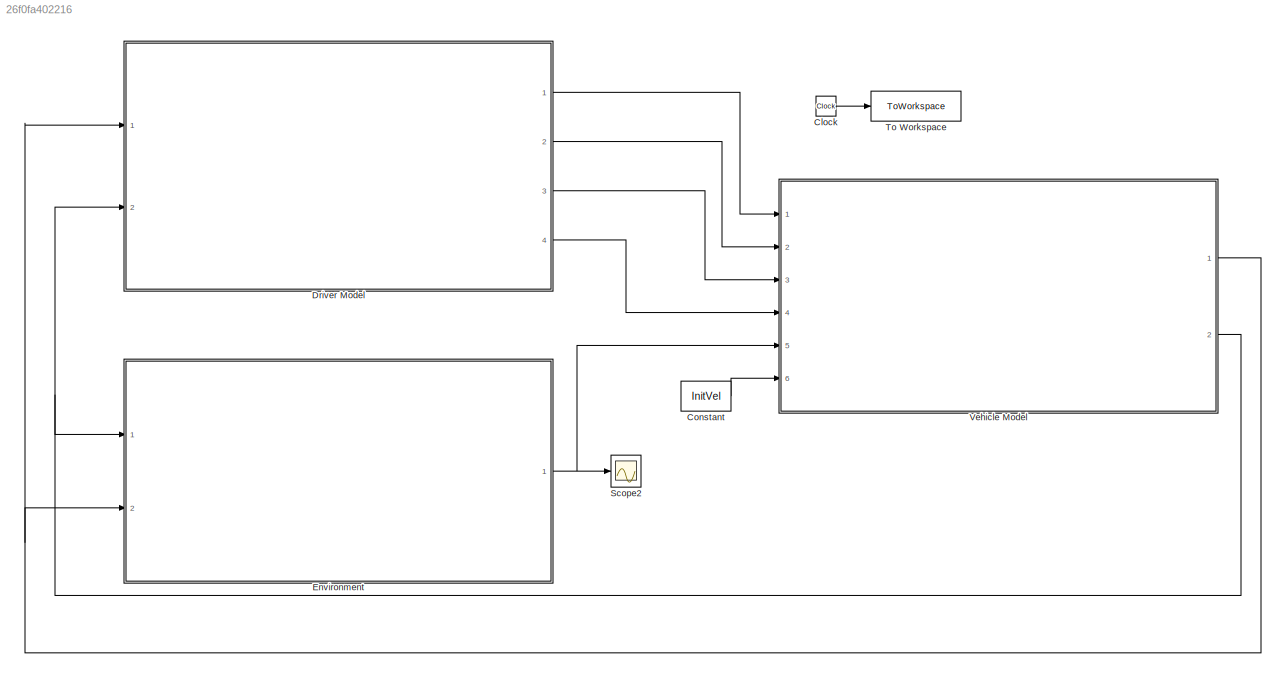
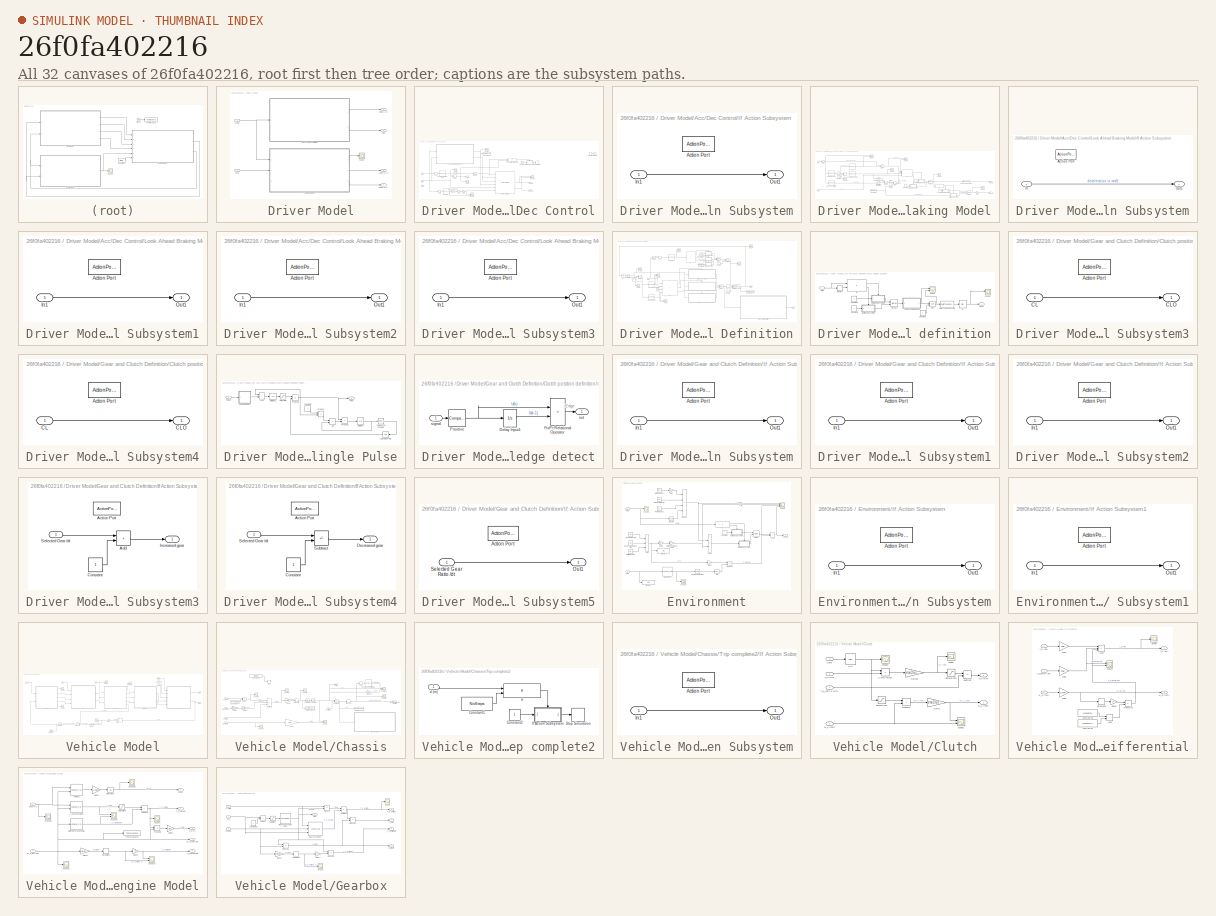
[diagram: thumbnail index - all 32 canvases of the model, root first then tree order]
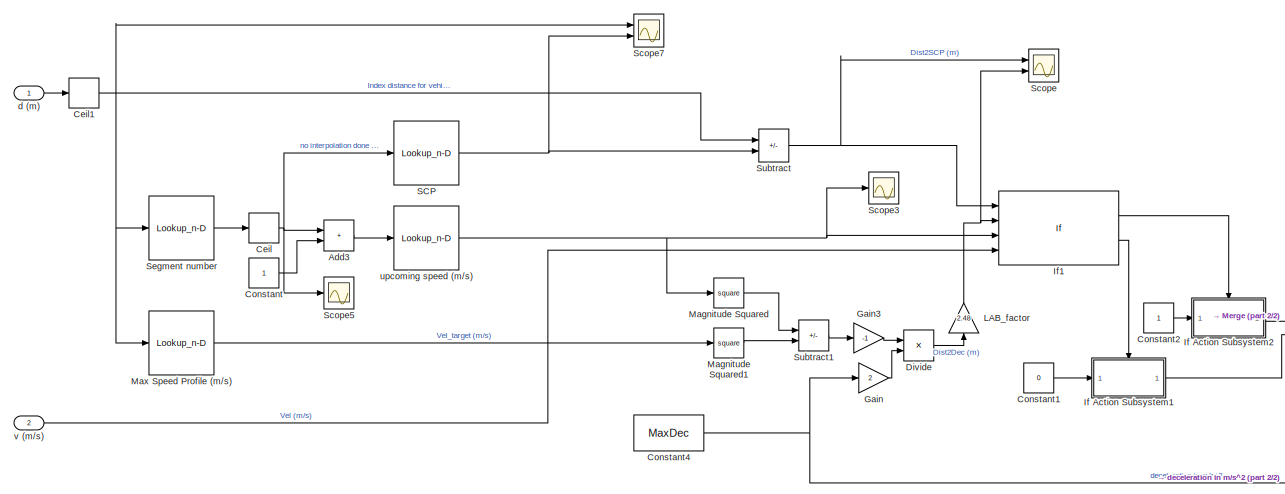
[diagram: Driver Model/Acc/Dec Control/Look Ahead Braking Model - part 1/2, left side, full height]
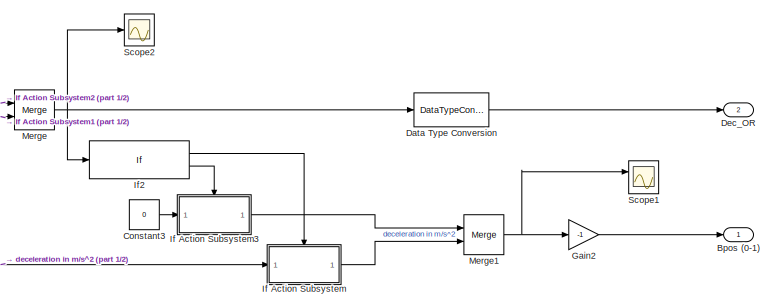
[diagram: Driver Model/Acc/Dec Control/Look Ahead Braking Model - part 2/2, bottom right region]
MODEL slx_26f0fa402216
KIND model
CONFIG AbsTol = auto
CONFIG EnableMultiTasking = off
CONFIG FixedStep = dt
CONFIG MaxStep = auto
CONFIG MinStep = auto
CONFIG RelTol = 1e-3
CONFIG SampleTimeConstraint = Unconstrained
CONFIG SolverName = FixedStepAuto
CONFIG StartTime = 0.0
CONFIG StopTime = 250
BLOCK [Clock] Clock
BLOCK [Constant] Constant
  Value = InitVel
BLOCK [SubSystem] Driver Model
  Ports = [2, 4]
  RequestExecContextInheritance = off
BLOCK [SubSystem] Driver Model/Acc//Dec Control
  Ports = [3, 3]
  RequestExecContextInheritance = off
BLOCK [Outport] Driver Model/Acc//Dec Control/Apos(0-1)
  Port = 2
BLOCK [Outport] Driver Model/Acc//Dec Control/Bpos (0-1)
  Port = 3
BLOCK [Rounding] Driver Model/Acc//Dec Control/Ceil
  Operator = ceil
BLOCK [Rounding] Driver Model/Acc//Dec Control/Ceil1
  Operator = ceil
BLOCK [Constant] Driver Model/Acc//Dec Control/Constant
BLOCK [Reference] Driver Model/Acc//Dec Control/Degrees to Radians  REF=simulink_extras/Transformations/Degrees to
Radians
  Ports = [1, 1]
  SourceBlock = simulink_extras/Transformations/Degrees to\nRadians
  SourceProductBaseCode = SL
  SourceType = DegreesToRadians
BLOCK [Inport] Driver Model/Acc//Dec Control/GNo
  Port = 3
BLOCK [Gain] Driver Model/Acc//Dec Control/Gain1
  Gain = 100
BLOCK [Lookup_n-D] Driver Model/Acc//Dec Control/Generated Operating Cycle
  BreakpointsForDimension1 = [1:length(MaxSpeedProfile)]
  BreakpointsForDimension2 = G1Inprpm
  InputPortMap = u0
  InternalRulePriority = Speed
  InterpMethod = Linear Lagrange
  NumberOfTableDimensions = 1
  Ports = [1, 1]
  RndMeth = Simplest
  Table = MaxSpeedProfile
BLOCK [SubSystem] Driver Model/Acc//Dec Control/If Action Subsystem
  Ports = [1, 1, 0, 0, 0, 0, 0, 1]
  RequestExecContextInheritance = off
  TreatAsAtomicUnit = on
BLOCK [ActionPort] Driver Model/Acc//Dec Control/If Action Subsystem/Action Port
  ActionPortLabel = if(u1 == 0 & u2 == 0)
BLOCK [Inport] Driver Model/Acc//Dec Control/If Action Subsystem/In1
BLOCK [Outport] Driver Model/Acc//Dec Control/If Action Subsystem/Out1
BLOCK [Reference] Driver Model/Acc//Dec Control/Longitudinal Driver  REF=autolibshared/Longitudinal Driver
  Ports = [6, 3]
  SourceBlock = autolibshared/Longitudinal Driver
  SourceProductBaseCode = PW,MT,UV,VE,VP
  SourceType = Longitudinal Driver
BLOCK [SubSystem] Driver Model/Acc//Dec Control/Look Ahead Braking Model
  Ports = [2, 2]
  RequestExecContextInheritance = off
BLOCK [Sum] Driver Model/Acc//Dec Control/Look Ahead Braking Model/Add3
  IconShape = rectangular
  Ports = [2, 1]
BLOCK [Outport] Driver Model/Acc//Dec Control/Look Ahead Braking Model/Bpos (0-1)
BLOCK [Rounding] Driver Model/Acc//Dec Control/Look Ahead Braking Model/Ceil
  Operator = ceil
BLOCK [Rounding] Driver Model/Acc//Dec Control/Look Ahead Braking Model/Ceil1
  Operator = ceil
BLOCK [Constant] Driver Model/Acc//Dec Control/Look Ahead Braking Model/Constant
BLOCK [Constant] Driver Model/Acc//Dec Control/Look Ahead Braking Model/Constant1
  Value = 0
BLOCK [Constant] Driver Model/Acc//Dec Control/Look Ahead Braking Model/Constant2
BLOCK [Constant] Driver Model/Acc//Dec Control/Look Ahead Braking Model/Constant3
  Value = 0
BLOCK [Constant] Driver Model/Acc//Dec Control/Look Ahead Braking Model/Constant4
  Value = MaxDec
BLOCK [DataTypeConversion] Driver Model/Acc//Dec Control/Look Ahead Braking Model/Data Type Conversion
  OutDataTypeStr = boolean
  RndMeth = Floor
  SaturateOnIntegerOverflow = off
BLOCK [Outport] Driver Model/Acc//Dec Control/Look Ahead Braking Model/Dec_OR
  Port = 2
BLOCK [Product] Driver Model/Acc//Dec Control/Look Ahead Braking Model/Divide
  Inputs = */
  Ports = [2, 1]
BLOCK [Gain] Driver Model/Acc//Dec Control/Look Ahead Braking Model/Gain
  Gain = 2
BLOCK [Gain] Driver Model/Acc//Dec Control/Look Ahead Braking Model/Gain2
  Gain = -1
BLOCK [Gain] Driver Model/Acc//Dec Control/Look Ahead Braking Model/Gain3
  Gain = -1
BLOCK [SubSystem] Driver Model/Acc//Dec Control/Look Ahead Braking Model/If Action Subsystem
  Ports = [1, 1, 0, 0, 0, 0, 0, 1]
  RequestExecContextInheritance = off
  TreatAsAtomicUnit = on
BLOCK [ActionPort] Driver Model/Acc//Dec Control/Look Ahead Braking Model/If Action Subsystem/Action Port
  ActionPortLabel = if(u1 > 0)
BLOCK [Inport] Driver Model/Acc//Dec Control/Look Ahead Braking Model/If Action Subsystem/In
BLOCK [Outport] Driver Model/Acc//Dec Control/Look Ahead Braking Model/If Action Subsystem/Out1
BLOCK [SubSystem] Driver Model/Acc//Dec Control/Look Ahead Braking Model/If Action Subsystem1
  Ports = [1, 1, 0, 0, 0, 0, 0, 1]
  RequestExecContextInheritance = off
  TreatAsAtomicUnit = on
BLOCK [ActionPort] Driver Model/Acc//Dec Control/Look Ahead Braking Model/If Action Subsystem1/Action Port
  ActionPortLabel = else
BLOCK [Inport] Driver Model/Acc//Dec Control/Look Ahead Braking Model/If Action Subsystem1/In1
BLOCK [Outport] Driver Model/Acc//Dec Control/Look Ahead Braking Model/If Action Subsystem1/Out1
BLOCK [SubSystem] Driver Model/Acc//Dec Control/Look Ahead Braking Model/If Action Subsystem2
  Ports = [1, 1, 0, 0, 0, 0, 0, 1]
  RequestExecContextInheritance = off
  TreatAsAtomicUnit = on
BLOCK [ActionPort] Driver Model/Acc//Dec Control/Look Ahead Braking Model/If Action Subsystem2/Action Port
  ActionPortLabel = if(u1 <= u2 & u3 < u4)
BLOCK [Inport] Driver Model/Acc//Dec Control/Look Ahead Braking Model/If Action Subsystem2/In1
BLOCK [Outport] Driver Model/Acc//Dec Control/Look Ahead Braking Model/If Action Subsystem2/Out1
BLOCK [SubSystem] Driver Model/Acc//Dec Control/Look Ahead Braking Model/If Action Subsystem3
  Ports = [1, 1, 0, 0, 0, 0, 0, 1]
  RequestExecContextInheritance = off
  TreatAsAtomicUnit = on
BLOCK [ActionPort] Driver Model/Acc//Dec Control/Look Ahead Braking Model/If Action Subsystem3/Action Port
  ActionPortLabel = else
BLOCK [Inport] Driver Model/Acc//Dec Control/Look Ahead Braking Model/If Action Subsystem3/In1
BLOCK [Outport] Driver Model/Acc//Dec Control/Look Ahead Braking Model/If Action Subsystem3/Out1
BLOCK [If] Driver Model/Acc//Dec Control/Look Ahead Braking Model/If1
  IfExpression = u1 <= u2 & u3 < u4
  NumInputs = 4
  Ports = [4, 2]
BLOCK [If] Driver Model/Acc//Dec Control/Look Ahead Braking Model/If2
  Ports = [1, 2]
BLOCK [Gain] Driver Model/Acc//Dec Control/Look Ahead Braking Model/LAB_factor
  Gain = 2.48
  NameLocation = right
BLOCK [Math] Driver Model/Acc//Dec Control/Look Ahead Braking Model/Magnitude Squared
  Operator = square
  Ports = [1, 1]
BLOCK [Math] Driver Model/Acc//Dec Control/Look Ahead Braking Model/Magnitude Squared1
  Operator = square
  Ports = [1, 1]
BLOCK [Lookup_n-D] Driver Model/Acc//Dec Control/Look Ahead Braking Model/Max Speed Profile (m//s)
  BreakpointsForDimension1 = [1:length(MaxSpeedProfile)]
  BreakpointsForDimension2 = G1Inprpm
  InputPortMap = u0
  InternalRulePriority = Speed
  InterpMethod = Linear Lagrange
  NumberOfTableDimensions = 1
  Ports = [1, 1]
  RndMeth = Simplest
  Table = MaxSpeedProfile
BLOCK [Merge] Driver Model/Acc//Dec Control/Look Ahead Braking Model/Merge
  Ports = [2, 1]
BLOCK [Merge] Driver Model/Acc//Dec Control/Look Ahead Braking Model/Merge1
  Ports = [2, 1]
BLOCK [Lookup_n-D] Driver Model/Acc//Dec Control/Look Ahead Braking Model/SCP
  BreakpointsForDimension1 = SegNo
  BreakpointsForDimension2 = G1Inprpm
  InputPortMap = u0
  InternalRulePriority = Speed
  InterpMethod = Linear Lagrange
  NumberOfTableDimensions = 1
  Ports = [1, 1]
  RndMeth = Simplest
  Table = CovDist
BLOCK [Scope] Driver Model/Acc//Dec Control/Look Ahead Braking Model/Scope
  Floating = off
  NumInputPorts = 2
  Ports = [2]
  ScopeSpecificationString = Simulink.scopes.TimeScopeBlockCfg('CurrentConfiguration', extmgr.ConfigurationSet(extmgr.Configuration('Core','General UI',true),extmgr.Configuration('Core','Source UI',true),extmgr.Configuration('Sources','WiredSimulink',true,'DataLoggingVariableName','ScopeData3'),extmgr.Configuration('Visuals','Time Domain',true,'SerializedDisplays',{struct('MinYLimReal','-125.93175','MaxYLimReal','212.17903','...<+1469ch>
BLOCK [Scope] Driver Model/Acc//Dec Control/Look Ahead Braking Model/Scope1
  Floating = off
  NumInputPorts = 2
  Ports = [2]
  ScopeSpecificationString = Simulink.scopes.TimeScopeBlockCfg('CurrentConfiguration', extmgr.ConfigurationSet(extmgr.Configuration('Core','General UI',true),extmgr.Configuration('Core','Source UI',true),extmgr.Configuration('Sources','WiredSimulink',true,'DataLoggingVariableName','ScopeData3'),extmgr.Configuration('Visuals','Time Domain',true,'SerializedDisplays',{struct('MinYLimReal','-0.625','MaxYLimReal','5.625','YLabelRe...<+1465ch>
BLOCK [Scope] Driver Model/Acc//Dec Control/Look Ahead Braking Model/Scope2
  Floating = off
  NumInputPorts = 1
  Ports = [1]
  ScopeSpecificationString = Simulink.scopes.TimeScopeBlockCfg('CurrentConfiguration', extmgr.ConfigurationSet(extmgr.Configuration('Core','General UI',true),extmgr.Configuration('Core','Source UI',true),extmgr.Configuration('Sources','WiredSimulink',true,'DataLoggingVariableName','ScopeData33'),extmgr.Configuration('Visuals','Time Domain',true,'SerializedDisplays',{struct('MinYLimReal','-0.00744','MaxYLimReal','0.01913','YLa...<+1437ch>
BLOCK [Scope] Driver Model/Acc//Dec Control/Look Ahead Braking Model/Scope3
  Floating = off
  NumInputPorts = 1
  Ports = [1]
  ScopeSpecificationString = Simulink.scopes.TimeScopeBlockCfg('CurrentConfiguration', extmgr.ConfigurationSet(extmgr.Configuration('Core','General UI',true),extmgr.Configuration('Core','Source UI',true),extmgr.Configuration('Sources','WiredSimulink',true,'DataLoggingVariableName','ScopeData6'),extmgr.Configuration('Visuals','Time Domain',true,'SerializedDisplays',{struct('MinYLimReal','-1.73611','MaxYLimReal','15.625','YLabe...<+1375ch>
BLOCK [Scope] Driver Model/Acc//Dec Control/Look Ahead Braking Model/Scope5
  Floating = off
  NumInputPorts = 1
  Ports = [1]
  ScopeSpecificationString = Simulink.scopes.TimeScopeBlockCfg('CurrentConfiguration', extmgr.ConfigurationSet(extmgr.Configuration('Core','General UI',true),extmgr.Configuration('Core','Source UI',true),extmgr.Configuration('Sources','WiredSimulink',true,'DataLoggingVariableName','ScopeData8'),extmgr.Configuration('Visuals','Time Domain',true,'SerializedDisplays',{struct('MinYLimReal','0.875','MaxYLimReal','2.125','YLabelRea...<+1387ch>
BLOCK [Scope] Driver Model/Acc//Dec Control/Look Ahead Braking Model/Scope7
  Floating = off
  NumInputPorts = 2
  Ports = [2]
  ScopeSpecificationString = Simulink.scopes.TimeScopeBlockCfg('CurrentConfiguration', extmgr.ConfigurationSet(extmgr.Configuration('Core','General UI',true),extmgr.Configuration('Core','Source UI',true),extmgr.Configuration('Sources','WiredSimulink',true,'DataLoggingVariableName','ScopeData1'),extmgr.Configuration('Visuals','Time Domain',true,'SerializedDisplays',{struct('MinYLimReal','1451.10121','MaxYLimReal','1535.50436',...<+1496ch>
BLOCK [Lookup_n-D] Driver Model/Acc//Dec Control/Look Ahead Braking Model/Segment number
  BreakpointsForDimension1 = CovDist
  BreakpointsForDimension2 = G1Inprpm
  InputPortMap = u0
  InternalRulePriority = Speed
  InterpMethod = Linear Lagrange
  NumberOfTableDimensions = 1
  Ports = [1, 1]
  RndMeth = Simplest
  Table = SegNo
BLOCK [Sum] Driver Model/Acc//Dec Control/Look Ahead Braking Model/Subtract
  IconShape = rectangular
  Inputs = -+
  Ports = [2, 1]
BLOCK [Sum] Driver Model/Acc//Dec Control/Look Ahead Braking Model/Subtract1
  IconShape = rectangular
  Inputs = +-
  Ports = [2, 1]
BLOCK [Inport] Driver Model/Acc//Dec Control/Look Ahead Braking Model/d (m)
BLOCK [Lookup_n-D] Driver Model/Acc//Dec Control/Look Ahead Braking Model/upcoming speed (m//s)
  BreakpointsForDimension1 = SegNo
  BreakpointsForDimension2 = G1Inprpm
  InputPortMap = u0
  InternalRulePriority = Speed
  InterpMethod = Linear Lagrange
  NumberOfTableDimensions = 1
  Ports = [1, 1]
  RndMeth = Simplest
  Table = SegSPLatinmps
BLOCK [Inport] Driver Model/Acc//Dec Control/Look Ahead Braking Model/v (m//s)
  Port = 2
BLOCK [RateLimiter] Driver Model/Acc//Dec Control/Rate Limiter1
  Commented = on
  FallingSlewLimit = -0.5
  RisingSlewLimit = 0.5
  SampleTimeMode = inherited
BLOCK [Saturate] Driver Model/Acc//Dec Control/Saturation
  LowerLimit = 0
  UpperLimit = inf
BLOCK [Saturate] Driver Model/Acc//Dec Control/Saturation2
  Commented = on
  LowerLimit = -1
  UpperLimit = 1
BLOCK [Scope] Driver Model/Acc//Dec Control/Scope
  Floating = off
  NumInputPorts = 2
  Ports = [2]
  ScopeSpecificationString = Simulink.scopes.TimeScopeBlockCfg('CurrentConfiguration', extmgr.ConfigurationSet(extmgr.Configuration('Core','General UI',true),extmgr.Configuration('Core','Source UI',true),extmgr.Configuration('Sources','WiredSimulink',true,'DataLoggingVariableName','ScopeData18'),extmgr.Configuration('Visuals','Time Domain',true,'SerializedDisplays',{struct('MinYLimReal','-3.99825','MaxYLimReal','15.87635','YL...<+1451ch>
BLOCK [Scope] Driver Model/Acc//Dec Control/Scope1
  Floating = off
  NumInputPorts = 1
  Ports = [1]
  ScopeSpecificationString = Simulink.scopes.TimeScopeBlockCfg('CurrentConfiguration', extmgr.ConfigurationSet(extmgr.Configuration('Core','General UI',true),extmgr.Configuration('Core','Source UI',true),extmgr.Configuration('Sources','WiredSimulink',true,'DataLoggingVariableName','ScopeData7'),extmgr.Configuration('Visuals','Time Domain',true,'SerializedDisplays',{struct('MinYLimReal','-5.625','MaxYLimReal','0.625','YLabelRe...<+1482ch>
BLOCK [Scope] Driver Model/Acc//Dec Control/Scope4
  Floating = off
  NumInputPorts = 2
  Ports = [2]
  ScopeSpecificationString = Simulink.scopes.TimeScopeBlockCfg('CurrentConfiguration', extmgr.ConfigurationSet(extmgr.Configuration('Core','General UI',true),extmgr.Configuration('Core','Source UI',true),extmgr.Configuration('Sources','WiredSimulink',true,'DataLoggingVariableName','ScopeData7'),extmgr.Configuration('Visuals','Time Domain',true,'SerializedDisplays',{struct('MinYLimReal','-1.73611','MaxYLimReal','15.625','YLabe...<+1439ch>
BLOCK [Scope] Driver Model/Acc//Dec Control/Scope5
  Floating = off
  NumInputPorts = 3
  Ports = [3]
  ScopeSpecificationString = Simulink.scopes.TimeScopeBlockCfg('CurrentConfiguration', extmgr.ConfigurationSet(extmgr.Configuration('Core','General UI',true),extmgr.Configuration('Core','Source UI',true),extmgr.Configuration('Sources','WiredSimulink',true,'DataLoggingVariableName','ScopeData1'),extmgr.Configuration('Visuals','Time Domain',true,'SerializedDisplays',{struct('MinYLimReal','-0.125','MaxYLimReal','1.125','YLabelRe...<+1549ch>
BLOCK [Scope] Driver Model/Acc//Dec Control/Scope6
  Floating = off
  NumInputPorts = 3
  Ports = [3]
  ScopeSpecificationString = Simulink.scopes.TimeScopeBlockCfg('CurrentConfiguration', extmgr.ConfigurationSet(extmgr.Configuration('Core','General UI',true),extmgr.Configuration('Core','Source UI',true),extmgr.Configuration('Sources','WiredSimulink',true,'DataLoggingVariableName','ScopeData4'),extmgr.Configuration('Visuals','Time Domain',true,'SerializedDisplays',{struct('MinYLimReal','-1.00000','MaxYLimReal','1.00000','YLab...<+1456ch>
BLOCK [Lookup_n-D] Driver Model/Acc//Dec Control/Slope (deg)
  BreakpointsForDimension1 = 1: length(IntpSlope)
  InputPortMap = u0
  InternalRulePriority = Speed
  NumberOfTableDimensions = 1
  Ports = [1, 1]
  RndMeth = Simplest
  Table = IntpSlope
BLOCK [Stop] Driver Model/Acc//Dec Control/Stop Simulation
BLOCK [If] Driver Model/Acc//Dec Control/Stop simulation if target vel is 0
  IfExpression = u1 == 0 & u2 == 0
  NumInputs = 2
  Ports = [2, 1]
  ShowElse = off
BLOCK [Sum] Driver Model/Acc//Dec Control/Subtract
  IconShape = rectangular
  Inputs = +-
  Ports = [2, 1]
BLOCK [Trigonometry] Driver Model/Acc//Dec Control/Tan
  Operator = tan
  Ports = [1, 1]
BLOCK [ToWorkspace] Driver Model/Acc//Dec Control/To Workspace1
  FixptAsFi = on
  MaxDataPoints = inf
  Ports = [1]
  SampleTime = -1
  SaveFormat = Timeseries
  VariableName = LAB
BLOCK [Inport] Driver Model/Acc//Dec Control/d (m)
  Port = 2
BLOCK [Inport] Driver Model/Acc//Dec Control/v (m//s)
BLOCK [Outport] Driver Model/Acc//Dec Control/v_er (m//s)
BLOCK [Outport] Driver Model/Apos(0-1)
  Port = 3
BLOCK [Outport] Driver Model/Bpos (0-1)
  Port = 4
BLOCK [Outport] Driver Model/Cpos (1-0)
BLOCK [Outport] Driver Model/GNo
  Port = 2
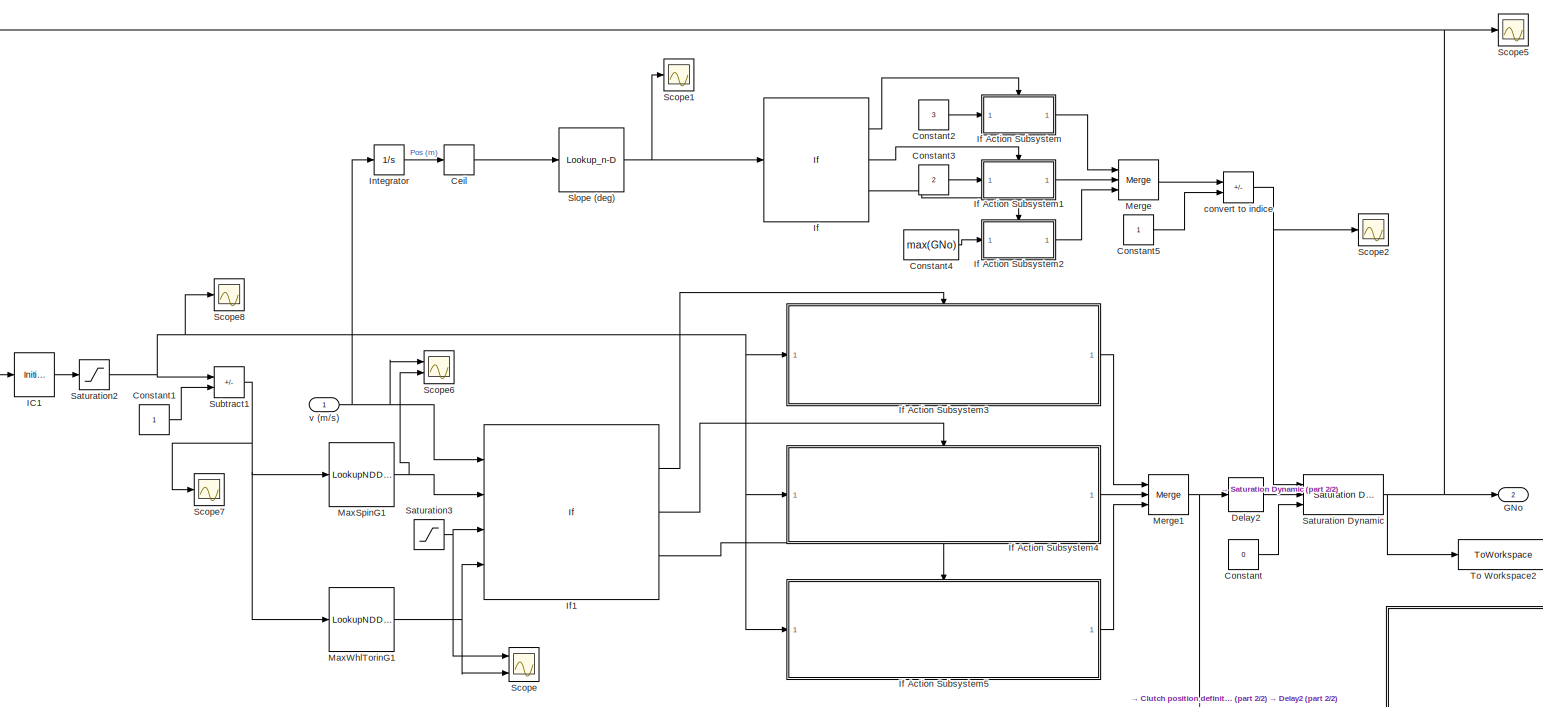
[diagram: Driver Model/Gear and Clutch Definition - part 1/2, most of the canvas]
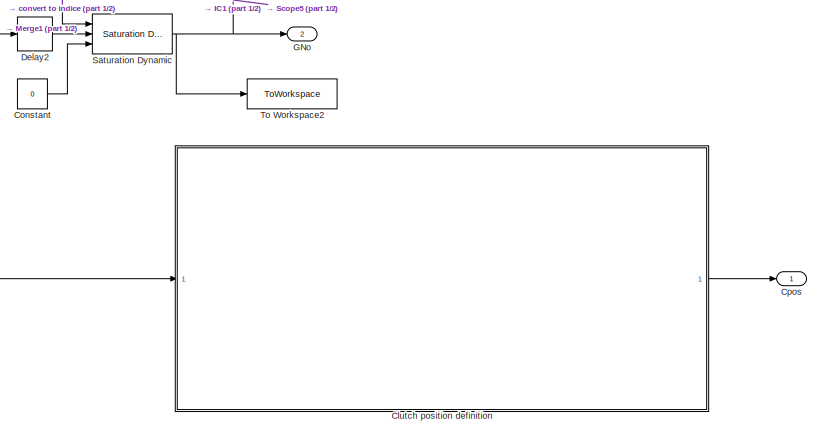
[diagram: Driver Model/Gear and Clutch Definition - part 2/2, bottom right region]
BLOCK [SubSystem] Driver Model/Gear and Clutch Definition
  Ports = [1, 2]
  RequestExecContextInheritance = off
BLOCK [Rounding] Driver Model/Gear and Clutch Definition/Ceil
  Operator = ceil
BLOCK [SubSystem] Driver Model/Gear and Clutch Definition/Clutch position definition
  Ports = [1, 1]
  RequestExecContextInheritance = off
BLOCK [Constant] Driver Model/Gear and Clutch Definition/Clutch position definition/Constant
BLOCK [Constant] Driver Model/Gear and Clutch Definition/Clutch position definition/Constant2
  Value = 0
BLOCK [Constant] Driver Model/Gear and Clutch Definition/Clutch position definition/Constant3
BLOCK [Outport] Driver Model/Gear and Clutch Definition/Clutch position definition/Cpos
BLOCK [DataTypeConversion] Driver Model/Gear and Clutch Definition/Clutch position definition/Data Type Conversion
  OutDataTypeStr = double
  RndMeth = Floor
  SaturateOnIntegerOverflow = off
BLOCK [Inport] Driver Model/Gear and Clutch Definition/Clutch position definition/GNo
BLOCK [InitialCondition] Driver Model/Gear and Clutch Definition/Clutch position definition/IC
  Value = 0
BLOCK [SubSystem] Driver Model/Gear and Clutch Definition/Clutch position definition/If Action Subsystem3
  Ports = [1, 1, 0, 0, 0, 0, 0, 1]
  RequestExecContextInheritance = off
  TreatAsAtomicUnit = on
BLOCK [ActionPort] Driver Model/Gear and Clutch Definition/Clutch position definition/If Action Subsystem3/Action Port
  ActionPortLabel = if(u1 == u2)
BLOCK [Inport] Driver Model/Gear and Clutch Definition/Clutch position definition/If Action Subsystem3/CL
BLOCK [Outport] Driver Model/Gear and Clutch Definition/Clutch position definition/If Action Subsystem3/CLO
BLOCK [SubSystem] Driver Model/Gear and Clutch Definition/Clutch position definition/If Action Subsystem4
  Ports = [1, 1, 0, 0, 0, 0, 0, 1]
  RequestExecContextInheritance = off
  TreatAsAtomicUnit = on
BLOCK [ActionPort] Driver Model/Gear and Clutch Definition/Clutch position definition/If Action Subsystem4/Action Port
  ActionPortLabel = else
BLOCK [Inport] Driver Model/Gear and Clutch Definition/Clutch position definition/If Action Subsystem4/CL
BLOCK [Outport] Driver Model/Gear and Clutch Definition/Clutch position definition/If Action Subsystem4/CLO
BLOCK [If] Driver Model/Gear and Clutch Definition/Clutch position definition/If1
  IfExpression = u1 == u2
  NumInputs = 2
  Ports = [2, 2]
BLOCK [Memory] Driver Model/Gear and Clutch Definition/Clutch position definition/Memory
BLOCK [Merge] Driver Model/Gear and Clutch Definition/Clutch position definition/Merge2
  Ports = [2, 1]
BLOCK [Scope] Driver Model/Gear and Clutch Definition/Clutch position definition/Scope
  Floating = off
  NumInputPorts = 2
  Ports = [2]
  ScopeSpecificationString = Simulink.scopes.TimeScopeBlockCfg('CurrentConfiguration', extmgr.ConfigurationSet(extmgr.Configuration('Core','General UI',true),extmgr.Configuration('Core','Source UI',true),extmgr.Configuration('Sources','WiredSimulink',true,'DataLoggingVariableName','ScopeData4'),extmgr.Configuration('Visuals','Time Domain',true,'SerializedDisplays',{struct('MinYLimReal','-0.125','MaxYLimReal','1.125','YLabelRe...<+1419ch>
BLOCK [Scope] Driver Model/Gear and Clutch Definition/Clutch position definition/Scope1
  Floating = off
  NumInputPorts = 2
  Ports = [2]
  ScopeSpecificationString = Simulink.scopes.TimeScopeBlockCfg('CurrentConfiguration', extmgr.ConfigurationSet(extmgr.Configuration('Core','General UI',true),extmgr.Configuration('Core','Source UI',true),extmgr.Configuration('Sources','WiredSimulink',true,'DataLoggingVariableName','ScopeData2'),extmgr.Configuration('Visuals','Time Domain',true,'SerializedDisplays',{struct('MinYLimReal','-0.125','MaxYLimReal','1.125','YLabelRe...<+1482ch>
BLOCK [SubSystem] Driver Model/Gear and Clutch Definition/Clutch position definition/Triggered Single Pulse
  Ports = [1, 1]
  RequestExecContextInheritance = off
  TreatAsAtomicUnit = on
BLOCK [SubSystem] Driver Model/Gear and Clutch Definition/Clutch position definition/Triggered Single Pulse/+ve edge detect
  Ports = [1, 1]
  RequestExecContextInheritance = off
BLOCK [UnitDelay] Driver Model/Gear and Clutch Definition/Clutch position definition/Triggered Single Pulse/+ve edge detect/Delay Input1
  Description = Store in Global RAM
  DisableCoverage = on
  HasFrameUpgradeWarning = on
  SampleTime = -1
BLOCK [RelationalOperator] Driver Model/Gear and Clutch Definition/Clutch position definition/Triggered Single Pulse/+ve edge detect/FixPt Relational Operator
  InputSameDT = off
  Operator = >
  OutDataTypeStr = fixdt(0, 8)
  Ports = [2, 1]
  ZeroCross = off
BLOCK [Reference] Driver Model/Gear and Clutch Definition/Clutch position definition/Triggered Single Pulse/+ve edge detect/Positive  REF=simulink/Logic and Bit
Operations/Compare
To Zero
  Ports = [1, 1]
  SourceBlock = simulink/Logic and Bit\nOperations/Compare\nTo Zero
  SourceProductBaseCode = SL
  SourceType = Compare To Zero
BLOCK [Outport] Driver Model/Gear and Clutch Definition/Clutch position definition/Triggered Single Pulse/+ve edge detect/out
BLOCK [Inport] Driver Model/Gear and Clutch Definition/Clutch position definition/Triggered Single Pulse/+ve edge detect/signal
BLOCK [Sum] Driver Model/Gear and Clutch Definition/Clutch position definition/Triggered Single Pulse/Add
  IconShape = rectangular
  Ports = [2, 1]
BLOCK [Sum] Driver Model/Gear and Clutch Definition/Clutch position definition/Triggered Single Pulse/Add1
  IconShape = rectangular
  Ports = [2, 1]
BLOCK [Reference] Driver Model/Gear and Clutch Definition/Clutch position definition/Triggered Single Pulse/Compare To Constant  REF=simulink/Logic and Bit
Operations/Compare
To Constant
  Ports = [1, 1]
  SourceBlock = simulink/Logic and Bit\nOperations/Compare\nTo Constant
  SourceProductBaseCode = SL
  SourceType = Compare To Constant
BLOCK [Constant] Driver Model/Gear and Clutch Definition/Clutch position definition/Triggered Single Pulse/Constant2
BLOCK [Logic] Driver Model/Gear and Clutch Definition/Clutch position definition/Triggered Single Pulse/Logical Operator
  AllPortsSameDT = off
  Operator = NOT
  OutDataTypeStr = boolean
  Ports = [1, 1]
BLOCK [Product] Driver Model/Gear and Clutch Definition/Clutch position definition/Triggered Single Pulse/Product
  Ports = [2, 1]
  RndMeth = Zero
BLOCK [Product] Driver Model/Gear and Clutch Definition/Clutch position definition/Triggered Single Pulse/Product1
  Ports = [2, 1]
  RndMeth = Zero
BLOCK [Product] Driver Model/Gear and Clutch Definition/Clutch position definition/Triggered Single Pulse/Product3
  Ports = [2, 1]
  RndMeth = Zero
BLOCK [Outport] Driver Model/Gear and Clutch Definition/Clutch position definition/Triggered Single Pulse/Pulse
BLOCK [Saturate] Driver Model/Gear and Clutch Definition/Clutch position definition/Triggered Single Pulse/Saturation
  LowerLimit = 0
  UpperLimit = 1
BLOCK [Inport] Driver Model/Gear and Clutch Definition/Clutch position definition/Triggered Single Pulse/Trigger
BLOCK [UnitDelay] Driver Model/Gear and Clutch Definition/Clutch position definition/Triggered Single Pulse/Unit Delay
  HasFrameUpgradeWarning = on
  SampleTime = -1
BLOCK [UnitDelay] Driver Model/Gear and Clutch Definition/Clutch position definition/Triggered Single Pulse/Unit Delay1
  HasFrameUpgradeWarning = on
  SampleTime = -1
BLOCK [Logic] Driver Model/Gear and Clutch Definition/Clutch position definition/XOR
  AllPortsSameDT = off
  IconShape = distinctive
  Operator = XOR
  OutDataTypeStr = boolean
  Ports = [2, 1]
BLOCK [Constant] Driver Model/Gear and Clutch Definition/Constant
  Value = 0
BLOCK [Constant] Driver Model/Gear and Clutch Definition/Constant1
BLOCK [Constant] Driver Model/Gear and Clutch Definition/Constant2
  Value = 3
BLOCK [Constant] Driver Model/Gear and Clutch Definition/Constant3
  Value = 2
BLOCK [Constant] Driver Model/Gear and Clutch Definition/Constant4
  Value = max(GNo)
BLOCK [Constant] Driver Model/Gear and Clutch Definition/Constant5
BLOCK [Outport] Driver Model/Gear and Clutch Definition/Cpos
BLOCK [Delay] Driver Model/Gear and Clutch Definition/Delay2
  DelayLength = 1
  InputPortMap = u0
  Ports = [1, 1]
BLOCK [Outport] Driver Model/Gear and Clutch Definition/GNo
  Port = 2
BLOCK [InitialCondition] Driver Model/Gear and Clutch Definition/IC1
BLOCK [If] Driver Model/Gear and Clutch Definition/If
  ElseIfExpressions = u1 > 5.5
  IfExpression = u1 > 2.8
  Ports = [1, 3]
BLOCK [SubSystem] Driver Model/Gear and Clutch Definition/If Action Subsystem
  Ports = [1, 1, 0, 0, 0, 0, 0, 1]
  RequestExecContextInheritance = off
  TreatAsAtomicUnit = on
BLOCK [ActionPort] Driver Model/Gear and Clutch Definition/If Action Subsystem/Action Port
  ActionPortLabel = if(u1 > 2.8)
BLOCK [Inport] Driver Model/Gear and Clutch Definition/If Action Subsystem/In1
BLOCK [Outport] Driver Model/Gear and Clutch Definition/If Action Subsystem/Out1
BLOCK [SubSystem] Driver Model/Gear and Clutch Definition/If Action Subsystem1
  Ports = [1, 1, 0, 0, 0, 0, 0, 1]
  RequestExecContextInheritance = off
  TreatAsAtomicUnit = on
BLOCK [ActionPort] Driver Model/Gear and Clutch Definition/If Action Subsystem1/Action Port
  ActionPortLabel = elseif(u1 > 5.5)
BLOCK [Inport] Driver Model/Gear and Clutch Definition/If Action Subsystem1/In1
BLOCK [Outport] Driver Model/Gear and Clutch Definition/If Action Subsystem1/Out1
BLOCK [SubSystem] Driver Model/Gear and Clutch Definition/If Action Subsystem2
  Ports = [1, 1, 0, 0, 0, 0, 0, 1]
  RequestExecContextInheritance = off
  TreatAsAtomicUnit = on
BLOCK [ActionPort] Driver Model/Gear and Clutch Definition/If Action Subsystem2/Action Port
  ActionPortLabel = else
BLOCK [Inport] Driver Model/Gear and Clutch Definition/If Action Subsystem2/In1
BLOCK [Outport] Driver Model/Gear and Clutch Definition/If Action Subsystem2/Out1
BLOCK [SubSystem] Driver Model/Gear and Clutch Definition/If Action Subsystem3
  Ports = [1, 1, 0, 0, 0, 0, 0, 1]
  RequestExecContextInheritance = off
  TreatAsAtomicUnit = on
BLOCK [ActionPort] Driver Model/Gear and Clutch Definition/If Action Subsystem3/Action Port
  ActionPortLabel = if(u1 >= u2 & u3 < u4)
BLOCK [Sum] Driver Model/Gear and Clutch Definition/If Action Subsystem3/Add
  IconShape = rectangular
  Ports = [2, 1]
BLOCK [Constant] Driver Model/Gear and Clutch Definition/If Action Subsystem3/Constant
BLOCK [Outport] Driver Model/Gear and Clutch Definition/If Action Subsystem3/Increased gear
BLOCK [Inport] Driver Model/Gear and Clutch Definition/If Action Subsystem3/Selected Gear //dt
BLOCK [SubSystem] Driver Model/Gear and Clutch Definition/If Action Subsystem4
  Ports = [1, 1, 0, 0, 0, 0, 0, 1]
  RequestExecContextInheritance = off
  TreatAsAtomicUnit = on
BLOCK [ActionPort] Driver Model/Gear and Clutch Definition/If Action Subsystem4/Action Port
  ActionPortLabel = elseif(u3 >= u4 & u1 < u2)
BLOCK [Constant] Driver Model/Gear and Clutch Definition/If Action Subsystem4/Constant
BLOCK [Outport] Driver Model/Gear and Clutch Definition/If Action Subsystem4/Decreased gear
BLOCK [Inport] Driver Model/Gear and Clutch Definition/If Action Subsystem4/Selected Gear //dt
BLOCK [Sum] Driver Model/Gear and Clutch Definition/If Action Subsystem4/Subtract
  IconShape = rectangular
  Inputs = +-
  Ports = [2, 1]
BLOCK [SubSystem] Driver Model/Gear and Clutch Definition/If Action Subsystem5
  Ports = [1, 1, 0, 0, 0, 0, 0, 1]
  RequestExecContextInheritance = off
  TreatAsAtomicUnit = on
BLOCK [ActionPort] Driver Model/Gear and Clutch Definition/If Action Subsystem5/Action Port
  ActionPortLabel = else
BLOCK [Outport] Driver Model/Gear and Clutch Definition/If Action Subsystem5/Out1
BLOCK [Inport] Driver Model/Gear and Clutch Definition/If Action Subsystem5/Selected Gear Ratio //dt
BLOCK [If] Driver Model/Gear and Clutch Definition/If1
  ElseIfExpressions = u3 >= u4 & u1 < u2
  IfExpression = u1 >= u2 & u3 < u4
  NumInputs = 4
  Ports = [4, 3]
BLOCK [Integrator] Driver Model/Gear and Clutch Definition/Integrator
  Ports = [1, 1]
BLOCK [LookupNDDirect] Driver Model/Gear and Clutch Definition/MaxSpinG1
  NumberOfTableDimensions = 1
  Ports = [1, 1]
  Table = MaxSpinG
BLOCK [LookupNDDirect] Driver Model/Gear and Clutch Definition/MaxWhlTorinG1
  NumberOfTableDimensions = 1
  Ports = [1, 1]
  Table = MaxWhlTorinG
BLOCK [Merge] Driver Model/Gear and Clutch Definition/Merge
  Inputs = 3
  Ports = [3, 1]
BLOCK [Merge] Driver Model/Gear and Clutch Definition/Merge1
  Inputs = 3
  Ports = [3, 1]
BLOCK [Reference] Driver Model/Gear and Clutch Definition/Saturation Dynamic  REF=simulink/Discontinuities/Saturation
Dynamic
  Ports = [3, 1]
  SourceBlock = simulink/Discontinuities/Saturation\nDynamic
  SourceProductBaseCode = SL
  SourceType = Saturation Dynamic
BLOCK [Saturate] Driver Model/Gear and Clutch Definition/Saturation2
  LowerLimit = 0
  UpperLimit = max(GNo)
BLOCK [Saturate] Driver Model/Gear and Clutch Definition/Saturation3
  LowerLimit = 0
  UpperLimit = inf
BLOCK [Scope] Driver Model/Gear and Clutch Definition/Scope
  Floating = off
  NumInputPorts = 3
  Ports = [3]
  ScopeSpecificationString = Simulink.scopes.TimeScopeBlockCfg('CurrentConfiguration', extmgr.ConfigurationSet(extmgr.Configuration('Core','General UI',true),extmgr.Configuration('Core','Source UI',true),extmgr.Configuration('Sources','WiredSimulink',true,'DataLoggingVariableName','ScopeData13'),extmgr.Configuration('Visuals','Time Domain',true,'SerializedDisplays',{struct('MinYLimReal','-1850.48865','MaxYLimReal','28388.4898...<+1526ch>
BLOCK [Scope] Driver Model/Gear and Clutch Definition/Scope1
  Floating = off
  NumInputPorts = 1
  Ports = [1]
  ScopeSpecificationString = Simulink.scopes.TimeScopeBlockCfg('CurrentConfiguration', extmgr.ConfigurationSet(extmgr.Configuration('Core','General UI',true),extmgr.Configuration('Core','Source UI',true),extmgr.Configuration('Sources','WiredSimulink',true,'DataLoggingVariableName','ScopeData12'),extmgr.Configuration('Visuals','Time Domain',true,'SerializedDisplays',{struct('MinYLimReal','5.70273','MaxYLimReal','5.72102','YLab...<+1388ch>
BLOCK [Scope] Driver Model/Gear and Clutch Definition/Scope2
  Floating = off
  NumInputPorts = 1
  Ports = [1]
  ScopeSpecificationString = Simulink.scopes.TimeScopeBlockCfg('CurrentConfiguration', extmgr.ConfigurationSet(extmgr.Configuration('Core','General UI',true),extmgr.Configuration('Core','Source UI',true),extmgr.Configuration('Sources','WiredSimulink',true,'DataLoggingVariableName','ScopeData18'),extmgr.Configuration('Visuals','Time Domain',true,'SerializedDisplays',{struct('MinYLimReal','3.00000','MaxYLimReal','5.00000','YLab...<+1375ch>
BLOCK [Scope] Driver Model/Gear and Clutch Definition/Scope5
  Floating = off
  NumInputPorts = 1
  Ports = [1]
  ScopeSpecificationString = Simulink.scopes.TimeScopeBlockCfg('CurrentConfiguration', extmgr.ConfigurationSet(extmgr.Configuration('Core','General UI',true),extmgr.Configuration('Core','Source UI',true),extmgr.Configuration('Sources','WiredSimulink',true,'DataLoggingVariableName','ScopeData2'),extmgr.Configuration('Visuals','Time Domain',true,'SerializedDisplays',{struct('MinYLimReal','-0.5','MaxYLimReal','4.5','YLabelReal',...<+1405ch>
BLOCK [Scope] Driver Model/Gear and Clutch Definition/Scope6
  Floating = off
  NumInputPorts = 2
  Ports = [2]
  ScopeSpecificationString = Simulink.scopes.TimeScopeBlockCfg('CurrentConfiguration', extmgr.ConfigurationSet(extmgr.Configuration('Core','General UI',true),extmgr.Configuration('Core','Source UI',true),extmgr.Configuration('Sources','WiredSimulink',true,'DataLoggingVariableName','ScopeData3'),extmgr.Configuration('Visuals','Time Domain',true,'SerializedDisplays',{struct('MinYLimReal','-1.90944','MaxYLimReal','17.18495','YLa...<+1384ch>
BLOCK [Scope] Driver Model/Gear and Clutch Definition/Scope7
  Floating = off
  NumInputPorts = 1
  Ports = [1]
  ScopeSpecificationString = Simulink.scopes.TimeScopeBlockCfg('CurrentConfiguration', extmgr.ConfigurationSet(extmgr.Configuration('Core','General UI',true),extmgr.Configuration('Core','Source UI',true),extmgr.Configuration('Sources','WiredSimulink',true,'DataLoggingVariableName','ScopeData7'),extmgr.Configuration('Visuals','Time Domain',true,'SerializedDisplays',{struct('MinYLimReal','-0.375','MaxYLimReal','3.375','YLabelRe...<+1386ch>
BLOCK [Scope] Driver Model/Gear and Clutch Definition/Scope8
  Floating = off
  NumInputPorts = 1
  Ports = [1]
  ScopeSpecificationString = Simulink.scopes.TimeScopeBlockCfg('CurrentConfiguration', extmgr.ConfigurationSet(extmgr.Configuration('Core','General UI',true),extmgr.Configuration('Core','Source UI',true),extmgr.Configuration('Sources','WiredSimulink',true,'DataLoggingVariableName','ScopeData9'),extmgr.Configuration('Visuals','Time Domain',true,'SerializedDisplays',{struct('MinYLimReal','0.625','MaxYLimReal','4.375','YLabelRea...<+1382ch>
BLOCK [Lookup_n-D] Driver Model/Gear and Clutch Definition/Slope (deg)
  BreakpointsForDimension1 = 1: length(IntpSlope)
  InputPortMap = u0
  InternalRulePriority = Speed
  NumberOfTableDimensions = 1
  Ports = [1, 1]
  RndMeth = Simplest
  Table = IntpSlope
BLOCK [Sum] Driver Model/Gear and Clutch Definition/Subtract1
  IconShape = rectangular
  Inputs = +-
  Ports = [2, 1]
BLOCK [ToWorkspace] Driver Model/Gear and Clutch Definition/To Workspace2
  FixptAsFi = on
  MaxDataPoints = inf
  Ports = [1]
  SampleTime = -1
  SaveFormat = Timeseries
  VariableName = Sel_g
BLOCK [Sum] Driver Model/Gear and Clutch Definition/convert to indice
  IconShape = rectangular
  Inputs = +-
  Ports = [2, 1]
BLOCK [Inport] Driver Model/Gear and Clutch Definition/v (m//s)
BLOCK [Scope] Driver Model/Scope
  Floating = off
  NumInputPorts = 1
  Ports = [1]
  ScopeSpecificationString = Simulink.scopes.TimeScopeBlockCfg('CurrentConfiguration', extmgr.ConfigurationSet(extmgr.Configuration('Core','General UI',true),extmgr.Configuration('Core','Source UI',true),extmgr.Configuration('Sources','WiredSimulink',true,'DataLoggingVariableName','ScopeData2'),extmgr.Configuration('Visuals','Time Domain',true,'SerializedDisplays',{struct('MinYLimReal','-6.53239','MaxYLimReal','16.15792','YLa...<+1435ch>
BLOCK [Inport] Driver Model/d (m)
  NameLocation = top
  Port = 2
BLOCK [Inport] Driver Model/v (m//s)
BLOCK [SubSystem] Environment
  Ports = [2, 1]
  RequestExecContextInheritance = off
BLOCK [Sum] Environment/Add
  IconShape = rectangular
  Inputs = +++
  Ports = [3, 1]
BLOCK [Sum] Environment/Add1
  IconShape = rectangular
  Ports = [2, 1]
BLOCK [Sum] Environment/Add2
  IconShape = rectangular
  Ports = [2, 1]
BLOCK [Constant] Environment/Air Density Rho
  Value = rho
BLOCK [Constant] Environment/Constant
  Value = 0
BLOCK [Reference] Environment/Degrees to Radians  REF=simulink_extras/Transformations/Degrees to
Radians
  Ports = [1, 1]
  SourceBlock = simulink_extras/Transformations/Degrees to\nRadians
  SourceProductBaseCode = SL
  SourceType = DegreesToRadians
BLOCK [Display] Environment/Display
  Decimation = 1
  Ports = [1]
BLOCK [Display] Environment/Display1
  Decimation = 1
  Ports = [1]
BLOCK [Constant] Environment/Drag Coefficient Cx
  Value = Cx
BLOCK [Constant] Environment/Expendable Mass Me
  Value = Me
BLOCK [Outport] Environment/F_res (N)
BLOCK [Constant] Environment/Frontal Area Sx
  Value = Sx
BLOCK [Gain] Environment/Gain
  Gain = 1/2
BLOCK [Gain] Environment/Gain1
  Gain = g
BLOCK [Gain] Environment/Gain2
  Gain = g
BLOCK [If] Environment/If
  Ports = [1, 2]
BLOCK [SubSystem] Environment/If Action Subsystem
  Ports = [1, 1, 0, 0, 0, 0, 0, 1]
  RequestExecContextInheritance = off
  TreatAsAtomicUnit = on
BLOCK [ActionPort] Environment/If Action Subsystem/Action Port
  ActionPortLabel = if(u1 > 0)
BLOCK [Inport] Environment/If Action Subsystem/In1
BLOCK [Outport] Environment/If Action Subsystem/Out1
BLOCK [SubSystem] Environment/If Action Subsystem1
  Ports = [1, 1, 0, 0, 0, 0, 0, 1]
  RequestExecContextInheritance = off
  TreatAsAtomicUnit = on
BLOCK [ActionPort] Environment/If Action Subsystem1/Action Port
  ActionPortLabel = else
BLOCK [Inport] Environment/If Action Subsystem1/In1
BLOCK [Outport] Environment/If Action Subsystem1/Out1
BLOCK [Merge] Environment/Merge
  Ports = [2, 1]
BLOCK [Product] Environment/Product
  Inputs = 4
  Ports = [4, 1]
BLOCK [Product] Environment/Product1
  Ports = [2, 1]
BLOCK [Gain] Environment/Rolling Resitance coeff
  Gain = Fr
BLOCK [Scope] Environment/Scope
  Floating = off
  NumInputPorts = 4
  Ports = [4]
  ScopeSpecificationString = Simulink.scopes.TimeScopeBlockCfg('CurrentConfiguration', extmgr.ConfigurationSet(extmgr.Configuration('Core','General UI',true),extmgr.Configuration('Core','Source UI',true),extmgr.Configuration('Sources','WiredSimulink',true,'DataLoggingVariableName','ScopeData16'),extmgr.Configuration('Visuals','Time Domain',true,'SerializedDisplays',{struct('MinYLimReal','-9566.79146','MaxYLimReal','59058.5068...<+1611ch>
BLOCK [Scope] Environment/Scope1
  Floating = off
  NumInputPorts = 1
  Ports = [1]
  ScopeSpecificationString = Simulink.scopes.TimeScopeBlockCfg('CurrentConfiguration', extmgr.ConfigurationSet(extmgr.Configuration('Core','General UI',true),extmgr.Configuration('Core','Source UI',true),extmgr.Configuration('Sources','WiredSimulink',true,'DataLoggingVariableName','ScopeData10'),extmgr.Configuration('Visuals','Time Domain',true,'SerializedDisplays',{struct('MinYLimReal','-1.15217','MaxYLimReal','10.36951','YL...<+1417ch>
BLOCK [Scope] Environment/Scope2
  Floating = off
  NumInputPorts = 1
  Ports = [1]
  ScopeSpecificationString = Simulink.scopes.TimeScopeBlockCfg('CurrentConfiguration', extmgr.ConfigurationSet(extmgr.Configuration('Core','General UI',true),extmgr.Configuration('Core','Source UI',true),extmgr.Configuration('Sources','WiredSimulink',true,'DataLoggingVariableName','ScopeData14'),extmgr.Configuration('Visuals','Time Domain',true,'SerializedDisplays',{struct('MinYLimReal','-1.00000','MaxYLimReal','1.00000','YLa...<+1371ch>
BLOCK [Trigonometry] Environment/Sin
  Ports = [1, 1]
BLOCK [Lookup_n-D] Environment/Slope (deg)
  BreakpointsForDimension1 = 1: length(IntpSlope)
  InputPortMap = u0
  InternalRulePriority = Speed
  NumberOfTableDimensions = 1
  Ports = [1, 1]
  RndMeth = Simplest
  Table = IntpSlope
BLOCK [Math] Environment/Square
  Operator = square
  Ports = [1, 1]
BLOCK [Constant] Environment/Trailer Mass Mt
  Value = Mt
BLOCK [Constant] Environment/Vehicle Mass Mv
  Value = Mv
BLOCK [Inport] Environment/d (m)
BLOCK [Inport] Environment/v (m//s)
  Port = 2
BLOCK [Scope] Scope2
  Floating = off
  NumInputPorts = 1
  Ports = [1]
  ScopeSpecificationString = Simulink.scopes.TimeScopeBlockCfg('CurrentConfiguration', extmgr.ConfigurationSet(extmgr.Configuration('Core','General UI',true),extmgr.Configuration('Core','Source UI',true),extmgr.Configuration('Sources','WiredSimulink',true,'DataLoggingVariableName','ScopeData7'),extmgr.Configuration('Visuals','Time Domain',true,'SerializedDisplays',{struct('MinYLimReal','4362.88102','MaxYLimReal','6319.41114',...<+1463ch>
BLOCK [ToWorkspace] To Workspace
  FixptAsFi = on
  MaxDataPoints = inf
  Ports = [1]
  SampleTime = -1
  SaveFormat = Timeseries
  VariableName = time
BLOCK [SubSystem] Vehicle Model
  Ports = [6, 2]
  RequestExecContextInheritance = off
BLOCK [Inport] Vehicle Model/Apos (0-1)
  Port = 3
BLOCK [Inport] Vehicle Model/Bpos (0-1)
  NameLocation = top
  Port = 4
BLOCK [SubSystem] Vehicle Model/Chassis
  Ports = [5, 2]
  RequestExecContextInheritance = off
BLOCK [Inport] Vehicle Model/Chassis/Bpos (dec)
  Port = 2
BLOCK [Rounding] Vehicle Model/Chassis/Ceil2
  Operator = ceil
BLOCK [Constant] Vehicle Model/Chassis/Constant23
  Commented = on
  Value = Ftractive
BLOCK [Constant] Vehicle Model/Chassis/Constant27
  Value = DynRolRad
BLOCK [Product] Vehicle Model/Chassis/Divide2
  Inputs = */
  Ports = [2, 1]
BLOCK [Inport] Vehicle Model/Chassis/F_res (N)
  Port = 3
BLOCK [Gain] Vehicle Model/Chassis/Gain11
  Gain = -Mtot
BLOCK [Gain] Vehicle Model/Chassis/Gain18
  Gain = 1/Mtot
BLOCK [Gain] Vehicle Model/Chassis/Gain19
  Gain = 3.6
BLOCK [Gain] Vehicle Model/Chassis/Gain27
  Gain = 1/(30* pi*DynRolRad)
BLOCK [Gain] Vehicle Model/Chassis/Gain4
  Gain = MaxDec
BLOCK [Outport] Vehicle Model/Chassis/Index for vehicle position
BLOCK [Integrator] Vehicle Model/Chassis/Integrator2
  ContinuousStateAttributes = 'acceleration'
  Ports = [1, 1]
BLOCK [Integrator] Vehicle Model/Chassis/Integrator5
  ContinuousStateAttributes = 'velocity'
  InitialConditionSource = external
  Ports = [2, 1]
BLOCK [Lookup_n-D] Vehicle Model/Chassis/Max Speed Profile (m//s)2
  BreakpointsForDimension1 = [1:length(MaxSpeedProfile)]
  BreakpointsForDimension2 = G1Inprpm
  InputPortMap = u0
  InternalRulePriority = Speed
  InterpMethod = Linear Lagrange
  NumberOfTableDimensions = 1
  Ports = [1, 1]
  RndMeth = Simplest
  Table = MaxSpeedProfile
BLOCK [MinMax] Vehicle Model/Chassis/Min2
  Inputs = 2
  Ports = [2, 1]
BLOCK [Saturate] Vehicle Model/Chassis/Only positive1
  LowerLimit = 0
  UpperLimit = inf
BLOCK [RateLimiter] Vehicle Model/Chassis/Rate Limiter
  FallingSlewLimit = -0.5
  NameLocation = top
  RisingSlewLimit = 0.5
  SampleTimeMode = inherited
BLOCK [Rounding] Vehicle Model/Chassis/Round2
  Operator = ceil
BLOCK [Scope] Vehicle Model/Chassis/Scope
  Floating = off
  NumInputPorts = 2
  Ports = [2]
  ScopeSpecificationString = Simulink.scopes.TimeScopeBlockCfg('CurrentConfiguration', extmgr.ConfigurationSet(extmgr.Configuration('Core','General UI',true),extmgr.Configuration('Core','Source UI',true),extmgr.Configuration('Sources','WiredSimulink',true,'DataLoggingVariableName','ScopeData3'),extmgr.Configuration('Visuals','Time Domain',true,'SerializedDisplays',{struct('MinYLimReal','9.88682','MaxYLimReal','18.96016','YLab...<+1496ch>
BLOCK [Scope] Vehicle Model/Chassis/Scope1
  Floating = off
  NumInputPorts = 1
  Ports = [1]
  ScopeSpecificationString = Simulink.scopes.TimeScopeBlockCfg('CurrentConfiguration', extmgr.ConfigurationSet(extmgr.Configuration('Core','General UI',true),extmgr.Configuration('Core','Source UI',true),extmgr.Configuration('Sources','WiredSimulink',true,'DataLoggingVariableName','ScopeData2'),extmgr.Configuration('Visuals','Time Domain',true,'SerializedDisplays',{struct('MinYLimReal','-0.76204','MaxYLimReal','1.74053','YLab...<+1477ch>
BLOCK [Scope] Vehicle Model/Chassis/Scope2
  Floating = off
  NumInputPorts = 1
  Ports = [1]
  ScopeSpecificationString = Simulink.scopes.TimeScopeBlockCfg('CurrentConfiguration', extmgr.ConfigurationSet(extmgr.Configuration('Core','General UI',true),extmgr.Configuration('Core','Source UI',true),extmgr.Configuration('Sources','WiredSimulink',true,'DataLoggingVariableName','ScopeData4'),extmgr.Configuration('Visuals','Time Domain',true,'SerializedDisplays',{struct('MinYLimReal','-47306.60054','MaxYLimReal','205002.474...<+1433ch>
BLOCK [Scope] Vehicle Model/Chassis/Scope3
  Floating = off
  NumInputPorts = 1
  Ports = [1]
  ScopeSpecificationString = Simulink.scopes.TimeScopeBlockCfg('CurrentConfiguration', extmgr.ConfigurationSet(extmgr.Configuration('Core','General UI',true),extmgr.Configuration('Core','Source UI',true),extmgr.Configuration('Sources','WiredSimulink',true,'DataLoggingVariableName','ScopeData5'),extmgr.Configuration('Visuals','Time Domain',true,'SerializedDisplays',{struct('MinYLimReal','-46798.2465','MaxYLimReal','205503.0141...<+1427ch>
BLOCK [Scope] Vehicle Model/Chassis/Scope30
  Floating = off
  NumInputPorts = 3
  Ports = [3]
  ScopeSpecificationString = Simulink.scopes.TimeScopeBlockCfg('CurrentConfiguration', extmgr.ConfigurationSet(extmgr.Configuration('Core','General UI',true),extmgr.Configuration('Core','Source UI',true),extmgr.Configuration('Sources','WiredSimulink',true,'DataLoggingVariableName','ScopeData16'),extmgr.Configuration('Visuals','Time Domain',true,'SerializedDisplays',{struct('MinYLimReal','-7.10133','MaxYLimReal','63.91201','YL...<+1568ch>
BLOCK [Scope] Vehicle Model/Chassis/Scope4
  Floating = off
  NumInputPorts = 1
  Ports = [1]
  ScopeSpecificationString = Simulink.scopes.TimeScopeBlockCfg('CurrentConfiguration', extmgr.ConfigurationSet(extmgr.Configuration('Core','General UI',true),extmgr.Configuration('Core','Source UI',true),extmgr.Configuration('Sources','WiredSimulink',true,'DataLoggingVariableName','ScopeData1'),extmgr.Configuration('Visuals','Time Domain',true,'SerializedDisplays',{struct('MinYLimReal','-102.39946','MaxYLimReal','3097.19517',...<+1438ch>
BLOCK [Scope] Vehicle Model/Chassis/Scope5
  Floating = off
  NumInputPorts = 1
  Ports = [1]
  ScopeSpecificationString = Simulink.scopes.TimeScopeBlockCfg('CurrentConfiguration', extmgr.ConfigurationSet(extmgr.Configuration('Core','General UI',true),extmgr.Configuration('Core','Source UI',true),extmgr.Configuration('Sources','WiredSimulink',true,'DataLoggingVariableName','ScopeData2'),extmgr.Configuration('Visuals','Time Domain',true,'SerializedDisplays',{struct('MinYLimReal','-375.25','MaxYLimReal','3377.25','YLabe...<+1412ch>
BLOCK [Sum] Vehicle Model/Chassis/Subtract8
  IconShape = rectangular
  Inputs = ++-
  Ports = [3, 1]
BLOCK [Inport] Vehicle Model/Chassis/T_w (Nm)
  Port = 4
BLOCK [ToWorkspace] Vehicle Model/Chassis/To Workspace3
  FixptAsFi = on
  MaxDataPoints = inf
  Ports = [1]
  SampleTime = -1
  SaveFormat = Timeseries
  VariableName = acc
BLOCK [ToWorkspace] Vehicle Model/Chassis/To Workspace5
  FixptAsFi = on
  MaxDataPoints = inf
  Ports = [1]
  SampleTime = -1
  SaveFormat = Timeseries
  VariableName = Pos1
BLOCK [SubSystem] Vehicle Model/Chassis/Trip complete2
  Ports = [1]
  RequestExecContextInheritance = off
BLOCK [Constant] Vehicle Model/Chassis/Trip complete2/Constant1
  Value = NoSteps
BLOCK [Constant] Vehicle Model/Chassis/Trip complete2/Constant2
BLOCK [If] Vehicle Model/Chassis/Trip complete2/If
  IfExpression = u1 > u2
  NumInputs = 2
  Ports = [2, 1]
  ShowElse = off
BLOCK [SubSystem] Vehicle Model/Chassis/Trip complete2/If Action Subsystem
  Ports = [1, 1, 0, 0, 0, 0, 0, 1]
  RequestExecContextInheritance = off
  TreatAsAtomicUnit = on
BLOCK [ActionPort] Vehicle Model/Chassis/Trip complete2/If Action Subsystem/Action Port
  ActionPortLabel = if(u1 > u2)
BLOCK [Inport] Vehicle Model/Chassis/Trip complete2/If Action Subsystem/In1
BLOCK [Outport] Vehicle Model/Chassis/Trip complete2/If Action Subsystem/Out1
BLOCK [Stop] Vehicle Model/Chassis/Trip complete2/Stop Simulation
BLOCK [Inport] Vehicle Model/Chassis/Trip complete2/d (m)
BLOCK [Inport] Vehicle Model/Chassis/W_w (rpm)
  Port = 5
BLOCK [Outport] Vehicle Model/Chassis/v (m//s)
  NameLocation = top
  Port = 2
BLOCK [Inport] Vehicle Model/Chassis/v_init (m//s)2
BLOCK [SubSystem] Vehicle Model/Clutch
  Ports = [4, 2]
  RequestExecContextInheritance = off
BLOCK [Product] Vehicle Model/Clutch/Clutch value1
  Ports = [2, 1]
BLOCK [Inport] Vehicle Model/Clutch/Cpos
BLOCK [Gain] Vehicle Model/Clutch/Gain1
  Gain = etaClutch
BLOCK [Gain] Vehicle Model/Clutch/Gain20
  Gain = etaClutch
BLOCK [InitialCondition] Vehicle Model/Clutch/IC2
  Value = 0
BLOCK [Product] Vehicle Model/Clutch/Product9
  Ports = [2, 1]
BLOCK [Saturate] Vehicle Model/Clutch/Saturation2
  LowerLimit = 0
  UpperLimit = inf
BLOCK [Saturate] Vehicle Model/Clutch/Saturation3
  LowerLimit = 0.5
  UpperLimit = 1
BLOCK [Scope] Vehicle Model/Clutch/Scope
  Floating = off
  NumInputPorts = 1
  Ports = [1]
  ScopeSpecificationString = Simulink.scopes.TimeScopeBlockCfg('CurrentConfiguration', extmgr.ConfigurationSet(extmgr.Configuration('Core','General UI',true),extmgr.Configuration('Core','Source UI',true),extmgr.Configuration('Sources','WiredSimulink',true,'DataLoggingVariableName','ScopeData5'),extmgr.Configuration('Visuals','Time Domain',true,'SerializedDisplays',{struct('MinYLimReal','-211.82434','MaxYLimReal','1098.68883',...<+1443ch>
BLOCK [Scope] Vehicle Model/Clutch/Scope1
  Floating = off
  NumInputPorts = 2
  Ports = [2]
  ScopeSpecificationString = Simulink.scopes.TimeScopeBlockCfg('CurrentConfiguration', extmgr.ConfigurationSet(extmgr.Configuration('Core','General UI',true),extmgr.Configuration('Core','Source UI',true),extmgr.Configuration('Sources','WiredSimulink',true,'DataLoggingVariableName','ScopeData6'),extmgr.Configuration('Visuals','Time Domain',true,'SerializedDisplays',{struct('MinYLimReal','73.21122','MaxYLimReal','2281.09905','Y...<+1421ch>
BLOCK [Scope] Vehicle Model/Clutch/Scope2
  Floating = off
  NumInputPorts = 1
  Ports = [1]
  ScopeSpecificationString = Simulink.scopes.TimeScopeBlockCfg('CurrentConfiguration', extmgr.ConfigurationSet(extmgr.Configuration('Core','General UI',true),extmgr.Configuration('Core','Source UI',true),extmgr.Configuration('Sources','WiredSimulink',true,'DataLoggingVariableName','ScopeData3'),extmgr.Configuration('Visuals','Time Domain',true,'SerializedDisplays',{struct('MinYLimReal','-0.03355','MaxYLimReal','1.0473','YLabe...<+1404ch>
BLOCK [Sum] Vehicle Model/Clutch/Subtract
  IconShape = rectangular
  Inputs = +-
  Ports = [2, 1]
BLOCK [Outport] Vehicle Model/Clutch/T_c (Nm)
BLOCK [Inport] Vehicle Model/Clutch/T_e (Nm)
  Port = 2
BLOCK [Inport] Vehicle Model/Clutch/T_e_inertia (Nm)
  Port = 4
BLOCK [Outport] Vehicle Model/Clutch/W_c (rpm)
  Port = 2
BLOCK [Inport] Vehicle Model/Clutch/W_e (rpm)
  Port = 3
BLOCK [Inport] Vehicle Model/Cpos
BLOCK [SubSystem] Vehicle Model/Differential
  Ports = [3, 2]
  RequestExecContextInheritance = off
BLOCK [Sum] Vehicle Model/Differential/Add4
  IconShape = rectangular
  Inputs = +--
  Ports = [3, 1]
BLOCK [Sum] Vehicle Model/Differential/Add5
  IconShape = rectangular
  Ports = [2, 1]
BLOCK [Constant] Vehicle Model/Differential/Constant28
  Value = NoWhlFA
BLOCK [Constant] Vehicle Model/Differential/Constant29
  Value = NoWhlRA
BLOCK [Derivative] Vehicle Model/Differential/Derivative6
BLOCK [Gain] Vehicle Model/Differential/FDR4
  Gain = FDR
BLOCK [Gain] Vehicle Model/Differential/FDR5
  Gain = 1/FDR
BLOCK [Gain] Vehicle Model/Differential/FDR6
  Gain = FDR
BLOCK [Gain] Vehicle Model/Differential/Gain26
  Gain = Jk
BLOCK [Product] Vehicle Model/Differential/Product10
  Ports = [2, 1]
BLOCK [Scope] Vehicle Model/Differential/Scope
  Floating = off
  NumInputPorts = 1
  Ports = [1]
  ScopeSpecificationString = Simulink.scopes.TimeScopeBlockCfg('CurrentConfiguration', extmgr.ConfigurationSet(extmgr.Configuration('Core','General UI',true),extmgr.Configuration('Core','Source UI',true),extmgr.Configuration('Sources','WiredSimulink',true,'DataLoggingVariableName','ScopeData11'),extmgr.Configuration('Visuals','Time Domain',true,'SerializedDisplays',{struct('MinYLimReal','-26009.62298','MaxYLimReal','91244.779...<+1446ch>
BLOCK [Scope] Vehicle Model/Differential/Scope1
  Floating = off
  NumInputPorts = 2
  Ports = [2]
  ScopeSpecificationString = Simulink.scopes.TimeScopeBlockCfg('CurrentConfiguration', extmgr.ConfigurationSet(extmgr.Configuration('Core','General UI',true),extmgr.Configuration('Core','Source UI',true),extmgr.Configuration('Sources','WiredSimulink',true,'DataLoggingVariableName','ScopeData7'),extmgr.Configuration('Visuals','Time Domain',true,'SerializedDisplays',{struct('MinYLimReal','-63314.36627','MaxYLimReal','21617.1307...<+1453ch>
BLOCK [Inport] Vehicle Model/Differential/T_g (Nm)
BLOCK [Inport] Vehicle Model/Differential/T_g_inertia (Nm)
  Port = 2
BLOCK [Outport] Vehicle Model/Differential/T_w (Nm)
BLOCK [Inport] Vehicle Model/Differential/W_g (rpm)
  Port = 3
BLOCK [Outport] Vehicle Model/Differential/W_w (rpm)
  Port = 2
BLOCK [SubSystem] Vehicle Model/Engine Model
  Ports = [2, 5]
  RequestExecContextInheritance = off
BLOCK [Lookup_n-D] Vehicle Model/Engine Model/1-D Lookup Table1
  BreakpointsForDimension1 = ThrotPos
  BreakpointsForDimension2 = RpmBrkPnt
  InputPortMap = u0,u1
  InternalRulePriority = Speed
  Ports = [2, 1]
  RndMeth = Simplest
  Table = ThrotTableVal
BLOCK [Inport] Vehicle Model/Engine Model/Apos (0-1)
BLOCK [Derivative] Vehicle Model/Engine Model/Derivative4
BLOCK [Outport] Vehicle Model/Engine Model/FC (g)
BLOCK [Lookup_n-D] Vehicle Model/Engine Model/FC Map1
  BreakpointsForDimension1 = ThrotPos
  BreakpointsForDimension2 = RpmBrkPnt
  InputPortMap = u0,u1
  InternalRulePriority = Speed
  Ports = [2, 1]
  RndMeth = Simplest
  Table = FCTableVal
BLOCK [Gain] Vehicle Model/Engine Model/Gain21
  Gain = pi/30
BLOCK [Gain] Vehicle Model/Engine Model/Gain22
  Gain = 1/3600
BLOCK [Gain] Vehicle Model/Engine Model/Gain23
  Gain = Je
BLOCK [Gain] Vehicle Model/Engine Model/Gain24
  Gain = pi/30
BLOCK [Integrator] Vehicle Model/Engine Model/Integrator1
  Ports = [1, 1]
BLOCK [Lookup_n-D] Vehicle Model/Engine Model/Motoring Torque Table1
  BreakpointsForDimension1 = EngineRpm
  BreakpointsForDimension2 = G1Inprpm
  InputPortMap = u0
  InternalRulePriority = Speed
  InterpMethod = Linear Lagrange
  NumberOfTableDimensions = 1
  Ports = [1, 1]
  RndMeth = Simplest
  Table = MotoringTor
BLOCK [Outport] Vehicle Model/Engine Model/P_e (W)
  Port = 5
BLOCK [Product] Vehicle Model/Engine Model/Product8
  Ports = [2, 1]
BLOCK [Saturate] Vehicle Model/Engine Model/Saturation6
  LowerLimit = 0
  UpperLimit = inf
BLOCK [Scope] Vehicle Model/Engine Model/Scope1
  Floating = off
  NumInputPorts = 1
  Ports = [1]
  ScopeSpecificationString = Simulink.scopes.TimeScopeBlockCfg('CurrentConfiguration', extmgr.ConfigurationSet(extmgr.Configuration('Core','General UI',true),extmgr.Configuration('Core','Source UI',true),extmgr.Configuration('Sources','WiredSimulink',true,'DataLoggingVariableName','ScopeData4'),extmgr.Configuration('Visuals','Time Domain',true,'SerializedDisplays',{struct('MinYLimReal','-231.35912','MaxYLimReal','1258.27988',...<+1416ch>
BLOCK [Scope] Vehicle Model/Engine Model/Scope22
  Floating = off
  NumInputPorts = 1
  Ports = [1]
  ScopeSpecificationString = Simulink.scopes.TimeScopeBlockCfg('CurrentConfiguration', extmgr.ConfigurationSet(extmgr.Configuration('Core','General UI',true),extmgr.Configuration('Core','Source UI',true),extmgr.Configuration('Sources','WiredSimulink',true,'DataLoggingVariableName','ScopeData8'),extmgr.Configuration('Visuals','Time Domain',true,'SerializedDisplays',{struct('MinYLimReal','-0.125','MaxYLimReal','1.125','YLabelRe...<+1444ch>
BLOCK [Scope] Vehicle Model/Engine Model/Scope23
  Floating = off
  NumInputPorts = 1
  Ports = [1]
  ScopeSpecificationString = Simulink.scopes.TimeScopeBlockCfg('CurrentConfiguration', extmgr.ConfigurationSet(extmgr.Configuration('Core','General UI',true),extmgr.Configuration('Core','Source UI',true),extmgr.Configuration('Sources','WiredSimulink',true,'DataLoggingVariableName','ScopeData9'),extmgr.Configuration('Visuals','Time Domain',true,'SerializedDisplays',{struct('MinYLimReal','350.00000','MaxYLimReal','2850.00000','...<+1496ch>
BLOCK [Scope] Vehicle Model/Engine Model/Scope26
  Floating = off
  NumInputPorts = 2
  Ports = [2]
  ScopeSpecificationString = Simulink.scopes.TimeScopeBlockCfg('CurrentConfiguration', extmgr.ConfigurationSet(extmgr.Configuration('Core','General UI',true),extmgr.Configuration('Core','Source UI',true),extmgr.Configuration('Sources','WiredSimulink',true,'DataLoggingVariableName','ScopeData12'),extmgr.Configuration('Visuals','Time Domain',true,'SerializedDisplays',{struct('MinYLimReal','-236.40299','MaxYLimReal','1194.71144'...<+1432ch>
BLOCK [Scope] Vehicle Model/Engine Model/Scope28
  Floating = off
  NumInputPorts = 1
  Ports = [1]
  ScopeSpecificationString = Simulink.scopes.TimeScopeBlockCfg('CurrentConfiguration', extmgr.ConfigurationSet(extmgr.Configuration('Core','General UI',true),extmgr.Configuration('Core','Source UI',true),extmgr.Configuration('Sources','WiredSimulink',true,'DataLoggingVariableName','ScopeData14'),extmgr.Configuration('Visuals','Time Domain',true,'SerializedDisplays',{struct('MinYLimReal','-133.11945','MaxYLimReal','1198.07504'...<+1436ch>
BLOCK [Scope] Vehicle Model/Engine Model/Scope29
  Floating = off
  NumInputPorts = 2
  Ports = [2]
  ScopeSpecificationString = Simulink.scopes.TimeScopeBlockCfg('CurrentConfiguration', extmgr.ConfigurationSet(extmgr.Configuration('Core','General UI',true),extmgr.Configuration('Core','Source UI',true),extmgr.Configuration('Sources','WiredSimulink',true,'DataLoggingVariableName','ScopeData15'),extmgr.Configuration('Visuals','Time Domain',true,'SerializedDisplays',{struct('MinYLimReal','-422.26641','MaxYLimReal','876.57122',...<+1528ch>
BLOCK [Sum] Vehicle Model/Engine Model/Subtract7
  IconShape = rectangular
  Ports = [2, 1]
BLOCK [Outport] Vehicle Model/Engine Model/T_e_inertia (Nm)
  Port = 4
BLOCK [Outport] Vehicle Model/Engine Model/T_e_out (Nm)
  Port = 2
BLOCK [ToWorkspace] Vehicle Model/Engine Model/To Workspace2
  FixptAsFi = on
  MaxDataPoints = inf
  Ports = [1]
  SampleTime = -1
  SaveFormat = Timeseries
  VariableName = W_engine_inp1
BLOCK [Inport] Vehicle Model/Engine Model/W_e_inp (rpm)
  Port = 2
BLOCK [Outport] Vehicle Model/Engine Model/W_e_out (rpm)
  Port = 3
BLOCK [Inport] Vehicle Model/F_res (N)
  NameLocation = top
  Port = 5
BLOCK [Inport] Vehicle Model/GNo
  Port = 2
BLOCK [Gain] Vehicle Model/Gain1
  Gain = 60
  NameLocation = top
BLOCK [Gain] Vehicle Model/Gain7
  Gain = 1/(2*pi*DynRolRad)
  NameLocation = top
BLOCK [Gain] Vehicle Model/Gain8
  Gain = FDR
  NameLocation = top
BLOCK [SubSystem] Vehicle Model/Gearbox
  Ports = [3, 5]
  RequestExecContextInheritance = off
BLOCK [Constant] Vehicle Model/Gearbox/Constant20
BLOCK [Derivative] Vehicle Model/Gearbox/Derivative5
BLOCK [LookupNDDirect] Vehicle Model/Gearbox/Direct Lookup Table (n-D)2
  NumberOfTableDimensions = 1
  Ports = [1, 1]
  Table = GRa
BLOCK [Lookup_n-D] Vehicle Model/Gearbox/GBX Loss Tables1
  BreakpointsForDimension1 = GInpTor
  BreakpointsForDimension2 = GInprpm
  BreakpointsForDimension3 = GearNo
  InputPortMap = u0,u1,u2
  InternalRulePriority = Speed
  InterpMethod = Linear Lagrange
  NumberOfTableDimensions = 3
  Ports = [3, 1]
  RndMeth = Simplest
  Table = GTorLoss
BLOCK [Inport] Vehicle Model/Gearbox/GNo
BLOCK [Outport] Vehicle Model/Gearbox/GRa
  Port = 5
BLOCK [Gain] Vehicle Model/Gearbox/Gain12
  Gain = pi/30
BLOCK [Gain] Vehicle Model/Gearbox/Gain17
  Gain = Jm
BLOCK [Sum] Vehicle Model/Gearbox/Index1
  IconShape = rectangular
  Inputs = +-
  Ports = [2, 1]
BLOCK [Outport] Vehicle Model/Gearbox/P_g (W)
BLOCK [Product] Vehicle Model/Gearbox/Product11
  Ports = [2, 1]
BLOCK [Product] Vehicle Model/Gearbox/Product12
  Ports = [2, 1]
BLOCK [Product] Vehicle Model/Gearbox/Product13
  Ports = [2, 1]
BLOCK [Product] Vehicle Model/Gearbox/Product7
  Ports = [2, 1]
BLOCK [Saturate] Vehicle Model/Gearbox/Saturation7
  LowerLimit = 0
  UpperLimit = inf
BLOCK [Scope] Vehicle Model/Gearbox/Scope
  Floating = off
  NumInputPorts = 1
  Ports = [1]
  ScopeSpecificationString = Simulink.scopes.TimeScopeBlockCfg('CurrentConfiguration', extmgr.ConfigurationSet(extmgr.Configuration('Core','General UI',true),extmgr.Configuration('Core','Source UI',true),extmgr.Configuration('Sources','WiredSimulink',true,'DataLoggingVariableName','ScopeData7'),extmgr.Configuration('Visuals','Time Domain',true,'SerializedDisplays',{struct('MinYLimReal','-698.37048','MaxYLimReal','6038.84441',...<+1389ch>
BLOCK [Scope] Vehicle Model/Gearbox/Scope1
  Floating = off
  NumInputPorts = 1
  Ports = [1]
  ScopeSpecificationString = Simulink.scopes.TimeScopeBlockCfg('CurrentConfiguration', extmgr.ConfigurationSet(extmgr.Configuration('Core','General UI',true),extmgr.Configuration('Core','Source UI',true),extmgr.Configuration('Sources','WiredSimulink',true,'DataLoggingVariableName','ScopeData1'),extmgr.Configuration('Visuals','Time Domain',true,'SerializedDisplays',{struct('MinYLimReal','-148.72634','MaxYLimReal','94.67329','Y...<+1388ch>
BLOCK [Sum] Vehicle Model/Gearbox/Subtract6
  IconShape = rectangular
  Inputs = +-
  Ports = [2, 1]
BLOCK [Inport] Vehicle Model/Gearbox/T_c (Nm)
  Port = 2
BLOCK [Outport] Vehicle Model/Gearbox/T_g_inertia (Nm)
  Port = 3
BLOCK [Outport] Vehicle Model/Gearbox/T_g_out (Nm)
  Port = 2
BLOCK [Inport] Vehicle Model/Gearbox/W_c (rpm)
  Port = 3
BLOCK [Outport] Vehicle Model/Gearbox/W_g (rpm)
  Port = 4
BLOCK [Product] Vehicle Model/Product3
  NameLocation = top
  Ports = [2, 1]
BLOCK [Saturate] Vehicle Model/Saturation4
  LowerLimit = min(EngineRpm)
  NameLocation = top
  UpperLimit = max(EngineRpm)
BLOCK [Scope] Vehicle Model/Scope
  Floating = off
  NumInputPorts = 1
  Ports = [1]
  ScopeSpecificationString = Simulink.scopes.TimeScopeBlockCfg('CurrentConfiguration', extmgr.ConfigurationSet(extmgr.Configuration('Core','General UI',true),extmgr.Configuration('Core','Source UI',true),extmgr.Configuration('Sources','WiredSimulink',true,'DataLoggingVariableName','ScopeData6'),extmgr.Configuration('Visuals','Time Domain',true,'SerializedDisplays',{struct('MinYLimReal','-0.5','MaxYLimReal','4.5','YLabelReal',...<+1338ch>
BLOCK [Scope] Vehicle Model/Scope10
  Floating = off
  NameLocation = top
  NumInputPorts = 1
  Ports = [1]
  ScopeSpecificationString = Simulink.scopes.TimeScopeBlockCfg('CurrentConfiguration', extmgr.ConfigurationSet(extmgr.Configuration('Core','General UI',true),extmgr.Configuration('Core','Source UI',true),extmgr.Configuration('Sources','WiredSimulink',true,'DataLoggingVariableName','ScopeData1'),extmgr.Configuration('Visuals','Time Domain',true,'SerializedDisplays',{struct('MinYLimReal','-808.84808','MaxYLimReal','7279.63271',...<+1459ch>
BLOCK [Scope] Vehicle Model/Scope22
  Floating = off
  NumInputPorts = 1
  Ports = [1]
  ScopeSpecificationString = Simulink.scopes.TimeScopeBlockCfg('CurrentConfiguration', extmgr.ConfigurationSet(extmgr.Configuration('Core','General UI',true),extmgr.Configuration('Core','Source UI',true),extmgr.Configuration('Sources','WiredSimulink',true,'DataLoggingVariableName','ScopeData17'),extmgr.Configuration('Visuals','Time Domain',true,'SerializedDisplays',{struct('MinYLimReal','-39851.93372','MaxYLimReal','183838.86...<+1414ch>
BLOCK [Scope] Vehicle Model/Scope23
  Floating = off
  NumInputPorts = 1
  Ports = [1]
  ScopeSpecificationString = Simulink.scopes.TimeScopeBlockCfg('CurrentConfiguration', extmgr.ConfigurationSet(extmgr.Configuration('Core','General UI',true),extmgr.Configuration('Core','Source UI',true),extmgr.Configuration('Sources','WiredSimulink',true,'DataLoggingVariableName','ScopeData18'),extmgr.Configuration('Visuals','Time Domain',true,'SerializedDisplays',{struct('MinYLimReal','-79.06438','MaxYLimReal','711.57936','...<+1465ch>
BLOCK [Scope] Vehicle Model/Scope24
  Floating = off
  NumInputPorts = 1
  Ports = [1]
  ScopeSpecificationString = Simulink.scopes.TimeScopeBlockCfg('CurrentConfiguration', extmgr.ConfigurationSet(extmgr.Configuration('Core','General UI',true),extmgr.Configuration('Core','Source UI',true),extmgr.Configuration('Sources','WiredSimulink',true,'DataLoggingVariableName','ScopeData19'),extmgr.Configuration('Visuals','Time Domain',true,'SerializedDisplays',{struct('MinYLimReal','-7523049.63969','MaxYLimReal','6705905...<+1419ch>
BLOCK [Scope] Vehicle Model/Scope9
  Floating = off
  NameLocation = top
  NumInputPorts = 1
  Ports = [1]
  ScopeSpecificationString = Simulink.scopes.TimeScopeBlockCfg('CurrentConfiguration', extmgr.ConfigurationSet(extmgr.Configuration('Core','General UI',true),extmgr.Configuration('Core','Source UI',true),extmgr.Configuration('Sources','WiredSimulink',true,'DataLoggingVariableName','ScopeData2'),extmgr.Configuration('Visuals','Time Domain',true,'SerializedDisplays',{struct('MinYLimReal','-0.99555','MaxYLimReal','8.95991','YLab...<+1452ch>
BLOCK [Outport] Vehicle Model/d (m)
  Port = 2
BLOCK [Outport] Vehicle Model/v (m//s)
BLOCK [Inport] Vehicle Model/v_init (m//s)
  NameLocation = top
  Port = 6
ANNOTATION Driver Model/Gear and Clutch Definition/Clutch position definition/Triggered Single Pulse/+ve edge detect: Edge
LINE Clock:1 -> To Workspace:1
LINE Constant:1 -> Vehicle Model:6
LINE Driver Model/Acc//Dec Control/Ceil1:1 -> Driver Model/Acc//Dec Control/Slope (deg):1
LINE Driver Model/Acc//Dec Control/Ceil:1 -> Driver Model/Acc//Dec Control/Generated Operating Cycle:1
LINE Driver Model/Acc//Dec Control/Constant:1 -> Driver Model/Acc//Dec Control/If Action Subsystem:1
LINE Driver Model/Acc//Dec Control/Degrees to Radians:1 -> Driver Model/Acc//Dec Control/Tan:1
NET Driver Model/Acc//Dec Control/Gain1:1 -> Driver Model/Acc//Dec Control/Longitudinal Driver:6, Driver Model/Acc//Dec Control/Scope6:2
NET Driver Model/Acc//Dec Control/Generated Operating Cycle:1 -> Driver Model/Acc//Dec Control/Saturation:1, Driver Model/Acc//Dec Control/Scope4:1, Driver Model/Acc//Dec Control/Subtract:1
LINE Driver Model/Acc//Dec Control/If Action Subsystem/In1:1 -> Driver Model/Acc//Dec Control/If Action Subsystem/Out1:1
LINE Driver Model/Acc//Dec Control/If Action Subsystem:1 -> Driver Model/Acc//Dec Control/Stop Simulation:1
NET Driver Model/Acc//Dec Control/Longitudinal Driver:2 -> Driver Model/Acc//Dec Control/Apos(0-1):1, Driver Model/Acc//Dec Control/Scope5:2
NET Driver Model/Acc//Dec Control/Longitudinal Driver:3 -> Driver Model/Acc//Dec Control/Bpos (0-1):1, Driver Model/Acc//Dec Control/Scope5:3
LINE Driver Model/Acc//Dec Control/Look Ahead Braking Model/Add3:1 -> Driver Model/Acc//Dec Control/Look Ahead Braking Model/upcoming speed (m//s):1
NET Driver Model/Acc//Dec Control/Look Ahead Braking Model/Ceil1:1 -> Driver Model/Acc//Dec Control/Look Ahead Braking Model/Max Speed Profile (m//s):1, Driver Model/Acc//Dec Control/Look Ahead Braking Model/Scope7:1, Driver Model/Acc//Dec Control/Look Ahead Braking Model/Segment number:1, Driver Model/Acc//Dec Control/Look Ahead Braking Model/Subtract:1
NET Driver Model/Acc//Dec Control/Look Ahead Braking Model/Ceil:1 -> Driver Model/Acc//Dec Control/Look Ahead Braking Model/Add3:1, Driver Model/Acc//Dec Control/Look Ahead Braking Model/SCP:1, Driver Model/Acc//Dec Control/Look Ahead Braking Model/Scope5:1
LINE Driver Model/Acc//Dec Control/Look Ahead Braking Model/Constant1:1 -> Driver Model/Acc//Dec Control/Look Ahead Braking Model/If Action Subsystem1:1
LINE Driver Model/Acc//Dec Control/Look Ahead Braking Model/Constant2:1 -> Driver Model/Acc//Dec Control/Look Ahead Braking Model/If Action Subsystem2:1
LINE Driver Model/Acc//Dec Control/Look Ahead Braking Model/Constant3:1 -> Driver Model/Acc//Dec Control/Look Ahead Braking Model/If Action Subsystem3:1
NET Driver Model/Acc//Dec Control/Look Ahead Braking Model/Constant4:1 -> Driver Model/Acc//Dec Control/Look Ahead Braking Model/Gain:1, Driver Model/Acc//Dec Control/Look Ahead Braking Model/If Action Subsystem:1
LINE Driver Model/Acc//Dec Control/Look Ahead Braking Model/Constant:1 -> Driver Model/Acc//Dec Control/Look Ahead Braking Model/Add3:2
LINE Driver Model/Acc//Dec Control/Look Ahead Braking Model/Data Type Conversion:1 -> Driver Model/Acc//Dec Control/Look Ahead Braking Model/Dec_OR:1
LINE Driver Model/Acc//Dec Control/Look Ahead Braking Model/Divide:1 -> Driver Model/Acc//Dec Control/Look Ahead Braking Model/LAB_factor:1
LINE Driver Model/Acc//Dec Control/Look Ahead Braking Model/Gain2:1 -> Driver Model/Acc//Dec Control/Look Ahead Braking Model/Bpos (0-1):1
LINE Driver Model/Acc//Dec Control/Look Ahead Braking Model/Gain3:1 -> Driver Model/Acc//Dec Control/Look Ahead Braking Model/Divide:1
LINE Driver Model/Acc//Dec Control/Look Ahead Braking Model/Gain:1 -> Driver Model/Acc//Dec Control/Look Ahead Braking Model/Divide:2
LINE Driver Model/Acc//Dec Control/Look Ahead Braking Model/If Action Subsystem/In:1 -> Driver Model/Acc//Dec Control/Look Ahead Braking Model/If Action Subsystem/Out1:1
LINE Driver Model/Acc//Dec Control/Look Ahead Braking Model/If Action Subsystem1/In1:1 -> Driver Model/Acc//Dec Control/Look Ahead Braking Model/If Action Subsystem1/Out1:1
LINE Driver Model/Acc//Dec Control/Look Ahead Braking Model/If Action Subsystem1:1 -> Driver Model/Acc//Dec Control/Look Ahead Braking Model/Merge:2
LINE Driver Model/Acc//Dec Control/Look Ahead Braking Model/If Action Subsystem2/In1:1 -> Driver Model/Acc//Dec Control/Look Ahead Braking Model/If Action Subsystem2/Out1:1
LINE Driver Model/Acc//Dec Control/Look Ahead Braking Model/If Action Subsystem2:1 -> Driver Model/Acc//Dec Control/Look Ahead Braking Model/Merge:1
LINE Driver Model/Acc//Dec Control/Look Ahead Braking Model/If Action Subsystem3/In1:1 -> Driver Model/Acc//Dec Control/Look Ahead Braking Model/If Action Subsystem3/Out1:1
LINE Driver Model/Acc//Dec Control/Look Ahead Braking Model/If Action Subsystem3:1 -> Driver Model/Acc//Dec Control/Look Ahead Braking Model/Merge1:1
LINE Driver Model/Acc//Dec Control/Look Ahead Braking Model/If Action Subsystem:1 -> Driver Model/Acc//Dec Control/Look Ahead Braking Model/Merge1:2
LINE Driver Model/Acc//Dec Control/Look Ahead Braking Model/If1:1 -> Driver Model/Acc//Dec Control/Look Ahead Braking Model/If Action Subsystem2:ifaction
LINE Driver Model/Acc//Dec Control/Look Ahead Braking Model/If1:2 -> Driver Model/Acc//Dec Control/Look Ahead Braking Model/If Action Subsystem1:ifaction
LINE Driver Model/Acc//Dec Control/Look Ahead Braking Model/If2:1 -> Driver Model/Acc//Dec Control/Look Ahead Braking Model/If Action Subsystem:ifaction
LINE Driver Model/Acc//Dec Control/Look Ahead Braking Model/If2:2 -> Driver Model/Acc//Dec Control/Look Ahead Braking Model/If Action Subsystem3:ifaction
NET Driver Model/Acc//Dec Control/Look Ahead Braking Model/LAB_factor:1 -> Driver Model/Acc//Dec Control/Look Ahead Braking Model/If1:2, Driver Model/Acc//Dec Control/Look Ahead Braking Model/Scope:2
LINE Driver Model/Acc//Dec Control/Look Ahead Braking Model/Magnitude Squared1:1 -> Driver Model/Acc//Dec Control/Look Ahead Braking Model/Subtract1:2
LINE Driver Model/Acc//Dec Control/Look Ahead Braking Model/Magnitude Squared:1 -> Driver Model/Acc//Dec Control/Look Ahead Braking Model/Subtract1:1
LINE Driver Model/Acc//Dec Control/Look Ahead Braking Model/Max Speed Profile (m//s):1 -> Driver Model/Acc//Dec Control/Look Ahead Braking Model/Magnitude Squared1:1
NET Driver Model/Acc//Dec Control/Look Ahead Braking Model/Merge1:1 -> Driver Model/Acc//Dec Control/Look Ahead Braking Model/Gain2:1, Driver Model/Acc//Dec Control/Look Ahead Braking Model/Scope1:1
NET Driver Model/Acc//Dec Control/Look Ahead Braking Model/Merge:1 -> Driver Model/Acc//Dec Control/Look Ahead Braking Model/Data Type Conversion:1, Driver Model/Acc//Dec Control/Look Ahead Braking Model/If2:1, Driver Model/Acc//Dec Control/Look Ahead Braking Model/Scope2:1
NET Driver Model/Acc//Dec Control/Look Ahead Braking Model/SCP:1 -> Driver Model/Acc//Dec Control/Look Ahead Braking Model/Scope7:2, Driver Model/Acc//Dec Control/Look Ahead Braking Model/Subtract:2
LINE Driver Model/Acc//Dec Control/Look Ahead Braking Model/Segment number:1 -> Driver Model/Acc//Dec Control/Look Ahead Braking Model/Ceil:1
LINE Driver Model/Acc//Dec Control/Look Ahead Braking Model/Subtract1:1 -> Driver Model/Acc//Dec Control/Look Ahead Braking Model/Gain3:1
NET Driver Model/Acc//Dec Control/Look Ahead Braking Model/Subtract:1 -> Driver Model/Acc//Dec Control/Look Ahead Braking Model/If1:1, Driver Model/Acc//Dec Control/Look Ahead Braking Model/Scope:1
LINE Driver Model/Acc//Dec Control/Look Ahead Braking Model/d (m):1 -> Driver Model/Acc//Dec Control/Look Ahead Braking Model/Ceil1:1
NET Driver Model/Acc//Dec Control/Look Ahead Braking Model/upcoming speed (m//s):1 -> Driver Model/Acc//Dec Control/Look Ahead Braking Model/If1:3, Driver Model/Acc//Dec Control/Look Ahead Braking Model/Magnitude Squared:1, Driver Model/Acc//Dec Control/Look Ahead Braking Model/Scope3:1
LINE Driver Model/Acc//Dec Control/Look Ahead Braking Model/v (m//s):1 -> Driver Model/Acc//Dec Control/Look Ahead Braking Model/If1:4
NET Driver Model/Acc//Dec Control/Look Ahead Braking Model:1 -> Driver Model/Acc//Dec Control/Longitudinal Driver:4, Driver Model/Acc//Dec Control/Scope1:1, Driver Model/Acc//Dec Control/To Workspace1:1
NET Driver Model/Acc//Dec Control/Look Ahead Braking Model:2 -> Driver Model/Acc//Dec Control/Longitudinal Driver:2, Driver Model/Acc//Dec Control/Longitudinal Driver:3
LINE Driver Model/Acc//Dec Control/Rate Limiter1:1 -> Driver Model/Acc//Dec Control/Saturation2:1
NET Driver Model/Acc//Dec Control/Saturation:1 -> Driver Model/Acc//Dec Control/Longitudinal Driver:1, Driver Model/Acc//Dec Control/Stop simulation if target vel is 0:1
NET Driver Model/Acc//Dec Control/Slope (deg):1 -> Driver Model/Acc//Dec Control/Degrees to Radians:1, Driver Model/Acc//Dec Control/Scope6:3
LINE Driver Model/Acc//Dec Control/Stop simulation if target vel is 0:1 -> Driver Model/Acc//Dec Control/If Action Subsystem:ifaction
NET Driver Model/Acc//Dec Control/Subtract:1 -> Driver Model/Acc//Dec Control/Scope:1, Driver Model/Acc//Dec Control/Stop simulation if target vel is 0:2, Driver Model/Acc//Dec Control/v_er (m//s):1
LINE Driver Model/Acc//Dec Control/Tan:1 -> Driver Model/Acc//Dec Control/Gain1:1
NET Driver Model/Acc//Dec Control/d (m):1 -> Driver Model/Acc//Dec Control/Ceil1:1, Driver Model/Acc//Dec Control/Ceil:1, Driver Model/Acc//Dec Control/Look Ahead Braking Model:1
NET Driver Model/Acc//Dec Control/v (m//s):1 -> Driver Model/Acc//Dec Control/Longitudinal Driver:5, Driver Model/Acc//Dec Control/Look Ahead Braking Model:2, Driver Model/Acc//Dec Control/Subtract:2
LINE Driver Model/Acc//Dec Control:1 -> Driver Model/Scope:1
LINE Driver Model/Acc//Dec Control:2 -> Driver Model/Apos(0-1):1
LINE Driver Model/Acc//Dec Control:3 -> Driver Model/Bpos (0-1):1
LINE Driver Model/Gear and Clutch Definition/Ceil:1 -> Driver Model/Gear and Clutch Definition/Slope (deg):1
LINE Driver Model/Gear and Clutch Definition/Clutch position definition/Constant2:1 -> Driver Model/Gear and Clutch Definition/Clutch position definition/If Action Subsystem3:1
LINE Driver Model/Gear and Clutch Definition/Clutch position definition/Constant3:1 -> Driver Model/Gear and Clutch Definition/Clutch position definition/If Action Subsystem4:1
LINE Driver Model/Gear and Clutch Definition/Clutch position definition/Constant:1 -> Driver Model/Gear and Clutch Definition/Clutch position definition/XOR:2
LINE Driver Model/Gear and Clutch Definition/Clutch position definition/Data Type Conversion:1 -> Driver Model/Gear and Clutch Definition/Clutch position definition/IC:1
NET Driver Model/Gear and Clutch Definition/Clutch position definition/GNo:1 -> Driver Model/Gear and Clutch Definition/Clutch position definition/If1:1, Driver Model/Gear and Clutch Definition/Clutch position definition/Memory:1
NET Driver Model/Gear and Clutch Definition/Clutch position definition/IC:1 -> Driver Model/Gear and Clutch Definition/Clutch position definition/Cpos:1, Driver Model/Gear and Clutch Definition/Clutch position definition/Scope1:1
LINE Driver Model/Gear and Clutch Definition/Clutch position definition/If Action Subsystem3/CL:1 -> Driver Model/Gear and Clutch Definition/Clutch position definition/If Action Subsystem3/CLO:1
LINE Driver Model/Gear and Clutch Definition/Clutch position definition/If Action Subsystem3:1 -> Driver Model/Gear and Clutch Definition/Clutch position definition/Merge2:1
LINE Driver Model/Gear and Clutch Definition/Clutch position definition/If Action Subsystem4/CL:1 -> Driver Model/Gear and Clutch Definition/Clutch position definition/If Action Subsystem4/CLO:1
LINE Driver Model/Gear and Clutch Definition/Clutch position definition/If Action Subsystem4:1 -> Driver Model/Gear and Clutch Definition/Clutch position definition/Merge2:2
LINE Driver Model/Gear and Clutch Definition/Clutch position definition/If1:1 -> Driver Model/Gear and Clutch Definition/Clutch position definition/If Action Subsystem3:ifaction
LINE Driver Model/Gear and Clutch Definition/Clutch position definition/If1:2 -> Driver Model/Gear and Clutch Definition/Clutch position definition/If Action Subsystem4:ifaction
LINE Driver Model/Gear and Clutch Definition/Clutch position definition/Memory:1 -> Driver Model/Gear and Clutch Definition/Clutch position definition/If1:2
LINE Driver Model/Gear and Clutch Definition/Clutch position definition/Merge2:1 -> Driver Model/Gear and Clutch Definition/Clutch position definition/Triggered Single Pulse:1
LINE Driver Model/Gear and Clutch Definition/Clutch position definition/Triggered Single Pulse/+ve edge detect/Delay Input1:1 -> Driver Model/Gear and Clutch Definition/Clutch position definition/Triggered Single Pulse/+ve edge detect/FixPt Relational Operator:2
LINE Driver Model/Gear and Clutch Definition/Clutch position definition/Triggered Single Pulse/+ve edge detect/FixPt Relational Operator:1 -> Driver Model/Gear and Clutch Definition/Clutch position definition/Triggered Single Pulse/+ve edge detect/out:1
NET Driver Model/Gear and Clutch Definition/Clutch position definition/Triggered Single Pulse/+ve edge detect/Positive:1 -> Driver Model/Gear and Clutch Definition/Clutch position definition/Triggered Single Pulse/+ve edge detect/Delay Input1:1, Driver Model/Gear and Clutch Definition/Clutch position definition/Triggered Single Pulse/+ve edge detect/FixPt Relational Operator:1
LINE Driver Model/Gear and Clutch Definition/Clutch position definition/Triggered Single Pulse/+ve edge detect/signal:1 -> Driver Model/Gear and Clutch Definition/Clutch position definition/Triggered Single Pulse/+ve edge detect/Positive:1
LINE Driver Model/Gear and Clutch Definition/Clutch position definition/Triggered Single Pulse/+ve edge detect:1 -> Driver Model/Gear and Clutch Definition/Clutch position definition/Triggered Single Pulse/Add1:2
LINE Driver Model/Gear and Clutch Definition/Clutch position definition/Triggered Single Pulse/Add1:1 -> Driver Model/Gear and Clutch Definition/Clutch position definition/Triggered Single Pulse/Unit Delay1:1
LINE Driver Model/Gear and Clutch Definition/Clutch position definition/Triggered Single Pulse/Add:1 -> Driver Model/Gear and Clutch Definition/Clutch position definition/Triggered Single Pulse/Product1:2
LINE Driver Model/Gear and Clutch Definition/Clutch position definition/Triggered Single Pulse/Compare To Constant:1 -> Driver Model/Gear and Clutch Definition/Clutch position definition/Triggered Single Pulse/Logical Operator:1
LINE Driver Model/Gear and Clutch Definition/Clutch position definition/Triggered Single Pulse/Constant2:1 -> Driver Model/Gear and Clutch Definition/Clutch position definition/Triggered Single Pulse/Product:1
LINE Driver Model/Gear and Clutch Definition/Clutch position definition/Triggered Single Pulse/Logical Operator:1 -> Driver Model/Gear and Clutch Definition/Clutch position definition/Triggered Single Pulse/Product3:2
LINE Driver Model/Gear and Clutch Definition/Clutch position definition/Triggered Single Pulse/Product1:1 -> Driver Model/Gear and Clutch Definition/Clutch position definition/Triggered Single Pulse/Unit Delay:1
NET Driver Model/Gear and Clutch Definition/Clutch position definition/Triggered Single Pulse/Product3:1 -> Driver Model/Gear and Clutch Definition/Clutch position definition/Triggered Single Pulse/Add1:1, Driver Model/Gear and Clutch Definition/Clutch position definition/Triggered Single Pulse/Product1:1, Driver Model/Gear and Clutch Definition/Clutch position definition/Triggered Single Pulse/Product:2, Driver Model/Gear and Clutch Definition/Clutch position definition/Triggered Single Pulse/Pulse:1
LINE Driver Model/Gear and Clutch Definition/Clutch position definition/Triggered Single Pulse/Product:1 -> Driver Model/Gear and Clutch Definition/Clutch position definition/Triggered Single Pulse/Add:1
LINE Driver Model/Gear and Clutch Definition/Clutch position definition/Triggered Single Pulse/Saturation:1 -> Driver Model/Gear and Clutch Definition/Clutch position definition/Triggered Single Pulse/Product3:1
LINE Driver Model/Gear and Clutch Definition/Clutch position definition/Triggered Single Pulse/Trigger:1 -> Driver Model/Gear and Clutch Definition/Clutch position definition/Triggered Single Pulse/+ve edge detect:1
LINE Driver Model/Gear and Clutch Definition/Clutch position definition/Triggered Single Pulse/Unit Delay1:1 -> Driver Model/Gear and Clutch Definition/Clutch position definition/Triggered Single Pulse/Saturation:1
NET Driver Model/Gear and Clutch Definition/Clutch position definition/Triggered Single Pulse/Unit Delay:1 -> Driver Model/Gear and Clutch Definition/Clutch position definition/Triggered Single Pulse/Add:2, Driver Model/Gear and Clutch Definition/Clutch position definition/Triggered Single Pulse/Compare To Constant:1
NET Driver Model/Gear and Clutch Definition/Clutch position definition/Triggered Single Pulse:1 -> Driver Model/Gear and Clutch Definition/Clutch position definition/Scope:1, Driver Model/Gear and Clutch Definition/Clutch position definition/XOR:1
NET Driver Model/Gear and Clutch Definition/Clutch position definition/XOR:1 -> Driver Model/Gear and Clutch Definition/Clutch position definition/Data Type Conversion:1, Driver Model/Gear and Clutch Definition/Clutch position definition/Scope:2
LINE Driver Model/Gear and Clutch Definition/Clutch position definition:1 -> Driver Model/Gear and Clutch Definition/Cpos:1
LINE Driver Model/Gear and Clutch Definition/Constant1:1 -> Driver Model/Gear and Clutch Definition/Subtract1:2
LINE Driver Model/Gear and Clutch Definition/Constant2:1 -> Driver Model/Gear and Clutch Definition/If Action Subsystem:1
LINE Driver Model/Gear and Clutch Definition/Constant3:1 -> Driver Model/Gear and Clutch Definition/If Action Subsystem1:1
LINE Driver Model/Gear and Clutch Definition/Constant4:1 -> Driver Model/Gear and Clutch Definition/If Action Subsystem2:1
LINE Driver Model/Gear and Clutch Definition/Constant5:1 -> Driver Model/Gear and Clutch Definition/convert to indice:2
LINE Driver Model/Gear and Clutch Definition/Constant:1 -> Driver Model/Gear and Clutch Definition/Saturation Dynamic:3
LINE Driver Model/Gear and Clutch Definition/Delay2:1 -> Driver Model/Gear and Clutch Definition/Saturation Dynamic:2
LINE Driver Model/Gear and Clutch Definition/IC1:1 -> Driver Model/Gear and Clutch Definition/Saturation2:1
LINE Driver Model/Gear and Clutch Definition/If Action Subsystem/In1:1 -> Driver Model/Gear and Clutch Definition/If Action Subsystem/Out1:1
LINE Driver Model/Gear and Clutch Definition/If Action Subsystem1/In1:1 -> Driver Model/Gear and Clutch Definition/If Action Subsystem1/Out1:1
LINE Driver Model/Gear and Clutch Definition/If Action Subsystem1:1 -> Driver Model/Gear and Clutch Definition/Merge:2
LINE Driver Model/Gear and Clutch Definition/If Action Subsystem2/In1:1 -> Driver Model/Gear and Clutch Definition/If Action Subsystem2/Out1:1
LINE Driver Model/Gear and Clutch Definition/If Action Subsystem2:1 -> Driver Model/Gear and Clutch Definition/Merge:3
LINE Driver Model/Gear and Clutch Definition/If Action Subsystem3/Add:1 -> Driver Model/Gear and Clutch Definition/If Action Subsystem3/Increased gear:1
LINE Driver Model/Gear and Clutch Definition/If Action Subsystem3/Constant:1 -> Driver Model/Gear and Clutch Definition/If Action Subsystem3/Add:2
LINE Driver Model/Gear and Clutch Definition/If Action Subsystem3/Selected Gear //dt:1 -> Driver Model/Gear and Clutch Definition/If Action Subsystem3/Add:1
LINE Driver Model/Gear and Clutch Definition/If Action Subsystem3:1 -> Driver Model/Gear and Clutch Definition/Merge1:1
LINE Driver Model/Gear and Clutch Definition/If Action Subsystem4/Constant:1 -> Driver Model/Gear and Clutch Definition/If Action Subsystem4/Subtract:2
LINE Driver Model/Gear and Clutch Definition/If Action Subsystem4/Selected Gear //dt:1 -> Driver Model/Gear and Clutch Definition/If Action Subsystem4/Subtract:1
LINE Driver Model/Gear and Clutch Definition/If Action Subsystem4/Subtract:1 -> Driver Model/Gear and Clutch Definition/If Action Subsystem4/Decreased gear:1
LINE Driver Model/Gear and Clutch Definition/If Action Subsystem4:1 -> Driver Model/Gear and Clutch Definition/Merge1:2
LINE Driver Model/Gear and Clutch Definition/If Action Subsystem5/Selected Gear Ratio //dt:1 -> Driver Model/Gear and Clutch Definition/If Action Subsystem5/Out1:1
LINE Driver Model/Gear and Clutch Definition/If Action Subsystem5:1 -> Driver Model/Gear and Clutch Definition/Merge1:3
LINE Driver Model/Gear and Clutch Definition/If Action Subsystem:1 -> Driver Model/Gear and Clutch Definition/Merge:1
LINE Driver Model/Gear and Clutch Definition/If1:1 -> Driver Model/Gear and Clutch Definition/If Action Subsystem3:ifaction
LINE Driver Model/Gear and Clutch Definition/If1:2 -> Driver Model/Gear and Clutch Definition/If Action Subsystem4:ifaction
LINE Driver Model/Gear and Clutch Definition/If1:3 -> Driver Model/Gear and Clutch Definition/If Action Subsystem5:ifaction
LINE Driver Model/Gear and Clutch Definition/If:1 -> Driver Model/Gear and Clutch Definition/If Action Subsystem:ifaction
LINE Driver Model/Gear and Clutch Definition/If:2 -> Driver Model/Gear and Clutch Definition/If Action Subsystem1:ifaction
LINE Driver Model/Gear and Clutch Definition/If:3 -> Driver Model/Gear and Clutch Definition/If Action Subsystem2:ifaction
LINE Driver Model/Gear and Clutch Definition/Integrator:1 -> Driver Model/Gear and Clutch Definition/Ceil:1
NET Driver Model/Gear and Clutch Definition/MaxSpinG1:1 -> Driver Model/Gear and Clutch Definition/If1:2, Driver Model/Gear and Clutch Definition/Scope6:2
NET Driver Model/Gear and Clutch Definition/MaxWhlTorinG1:1 -> Driver Model/Gear and Clutch Definition/If1:4, Driver Model/Gear and Clutch Definition/Scope:3
NET Driver Model/Gear and Clutch Definition/Merge1:1 -> Driver Model/Gear and Clutch Definition/Clutch position definition:1, Driver Model/Gear and Clutch Definition/Delay2:1
LINE Driver Model/Gear and Clutch Definition/Merge:1 -> Driver Model/Gear and Clutch Definition/convert to indice:1
NET Driver Model/Gear and Clutch Definition/Saturation Dynamic:1 -> Driver Model/Gear and Clutch Definition/GNo:1, Driver Model/Gear and Clutch Definition/IC1:1, Driver Model/Gear and Clutch Definition/Scope5:1, Driver Model/Gear and Clutch Definition/To Workspace2:1
NET Driver Model/Gear and Clutch Definition/Saturation2:1 -> Driver Model/Gear and Clutch Definition/If Action Subsystem3:1, Driver Model/Gear and Clutch Definition/If Action Subsystem4:1, Driver Model/Gear and Clutch Definition/If Action Subsystem5:1, Driver Model/Gear and Clutch Definition/Scope8:1, Driver Model/Gear and Clutch Definition/Subtract1:1
NET Driver Model/Gear and Clutch Definition/Saturation3:1 -> Driver Model/Gear and Clutch Definition/If1:3, Driver Model/Gear and Clutch Definition/Scope:1
NET Driver Model/Gear and Clutch Definition/Slope (deg):1 -> Driver Model/Gear and Clutch Definition/If:1, Driver Model/Gear and Clutch Definition/Scope1:1
NET Driver Model/Gear and Clutch Definition/Subtract1:1 -> Driver Model/Gear and Clutch Definition/MaxSpinG1:1, Driver Model/Gear and Clutch Definition/MaxWhlTorinG1:1, Driver Model/Gear and Clutch Definition/Scope7:1
NET Driver Model/Gear and Clutch Definition/convert to indice:1 -> Driver Model/Gear and Clutch Definition/Saturation Dynamic:1, Driver Model/Gear and Clutch Definition/Scope2:1
NET Driver Model/Gear and Clutch Definition/v (m//s):1 -> Driver Model/Gear and Clutch Definition/If1:1, Driver Model/Gear and Clutch Definition/Integrator:1, Driver Model/Gear and Clutch Definition/Scope6:1
LINE Driver Model/Gear and Clutch Definition:1 -> Driver Model/Cpos (1-0):1
LINE Driver Model/Gear and Clutch Definition:2 -> Driver Model/GNo:1
LINE Driver Model/d (m):1 -> Driver Model/Acc//Dec Control:2
NET Driver Model/v (m//s):1 -> Driver Model/Acc//Dec Control:1, Driver Model/Gear and Clutch Definition:1
LINE Driver Model:1 -> Vehicle Model:1
LINE Driver Model:2 -> Vehicle Model:2
LINE Driver Model:3 -> Vehicle Model:3
LINE Driver Model:4 -> Vehicle Model:4
LINE Environment/Add1:1 -> Environment/If Action Subsystem:1
NET Environment/Add2:1 -> Environment/F_res (N):1, Environment/Scope:4
NET Environment/Add:1 -> Environment/Display:1, Environment/Gain1:1, Environment/Gain2:1
LINE Environment/Air Density Rho:1 -> Environment/Gain:1
LINE Environment/Constant:1 -> Environment/If Action Subsystem1:1
LINE Environment/Degrees to Radians:1 -> Environment/Sin:1
LINE Environment/Drag Coefficient Cx:1 -> Environment/Product:2
LINE Environment/Expendable Mass Me:1 -> Environment/Add:2
LINE Environment/Frontal Area Sx:1 -> Environment/Product:3
LINE Environment/Gain1:1 -> Environment/Rolling Resitance coeff:1
LINE Environment/Gain2:1 -> Environment/Product1:1
LINE Environment/Gain:1 -> Environment/Product:1
LINE Environment/If Action Subsystem/In1:1 -> Environment/If Action Subsystem/Out1:1
LINE Environment/If Action Subsystem1/In1:1 -> Environment/If Action Subsystem1/Out1:1
LINE Environment/If Action Subsystem1:1 -> Environment/Merge:1
LINE Environment/If Action Subsystem:1 -> Environment/Merge:2
LINE Environment/If:1 -> Environment/If Action Subsystem:ifaction
LINE Environment/If:2 -> Environment/If Action Subsystem1:ifaction
LINE Environment/Merge:1 -> Environment/Add2:1
NET Environment/Product1:1 -> Environment/Add2:2, Environment/Scope:3
NET Environment/Product:1 -> Environment/Add1:1, Environment/Scope:1
NET Environment/Rolling Resitance coeff:1 -> Environment/Add1:2, Environment/Scope:2
LINE Environment/Sin:1 -> Environment/Product1:2
NET Environment/Slope (deg):1 -> Environment/Degrees to Radians:1, Environment/Scope2:1
LINE Environment/Square:1 -> Environment/Product:4
LINE Environment/Trailer Mass Mt:1 -> Environment/Add:3
LINE Environment/Vehicle Mass Mv:1 -> Environment/Add:1
NET Environment/d (m):1 -> Environment/Display1:1, Environment/Slope (deg):1
NET Environment/v (m//s):1 -> Environment/If:1, Environment/Scope1:1, Environment/Square:1
NET Environment:1 -> Scope2:1, Vehicle Model:5
LINE Vehicle Model/Apos (0-1):1 -> Vehicle Model/Engine Model:1
LINE Vehicle Model/Bpos (0-1):1 -> Vehicle Model/Chassis:2
LINE Vehicle Model/Chassis/Bpos (dec):1 -> Vehicle Model/Chassis/Gain4:1
LINE Vehicle Model/Chassis/Ceil2:1 -> Vehicle Model/Chassis/Max Speed Profile (m//s)2:1
LINE Vehicle Model/Chassis/Constant23:1 -> Vehicle Model/Chassis/Min2:1
LINE Vehicle Model/Chassis/Constant27:1 -> Vehicle Model/Chassis/Divide2:2
NET Vehicle Model/Chassis/Divide2:1 -> Vehicle Model/Chassis/Scope3:1, Vehicle Model/Chassis/Subtract8:1
LINE Vehicle Model/Chassis/F_res (N):1 -> Vehicle Model/Chassis/Subtract8:3
LINE Vehicle Model/Chassis/Gain11:1 -> Vehicle Model/Chassis/Subtract8:2
LINE Vehicle Model/Chassis/Gain18:1 -> Vehicle Model/Chassis/Rate Limiter:1
LINE Vehicle Model/Chassis/Gain19:1 -> Vehicle Model/Chassis/Scope30:3
LINE Vehicle Model/Chassis/Gain27:1 -> Vehicle Model/Chassis/Scope:2
LINE Vehicle Model/Chassis/Gain4:1 -> Vehicle Model/Chassis/Gain11:1
LINE Vehicle Model/Chassis/Integrator2:1 -> Vehicle Model/Chassis/Only positive1:1
NET Vehicle Model/Chassis/Integrator5:1 -> Vehicle Model/Chassis/Round2:1, Vehicle Model/Chassis/To Workspace5:1, Vehicle Model/Chassis/Trip complete2:1
LINE Vehicle Model/Chassis/Max Speed Profile (m//s)2:1 -> Vehicle Model/Chassis/Scope30:1
NET Vehicle Model/Chassis/Only positive1:1 -> Vehicle Model/Chassis/Gain19:1, Vehicle Model/Chassis/Integrator5:1, Vehicle Model/Chassis/Scope30:2, Vehicle Model/Chassis/Scope:1, Vehicle Model/Chassis/v (m//s):1
NET Vehicle Model/Chassis/Rate Limiter:1 -> Vehicle Model/Chassis/Integrator2:1, Vehicle Model/Chassis/Scope1:1, Vehicle Model/Chassis/To Workspace3:1
NET Vehicle Model/Chassis/Round2:1 -> Vehicle Model/Chassis/Ceil2:1, Vehicle Model/Chassis/Index for vehicle position:1, Vehicle Model/Chassis/Scope5:1
NET Vehicle Model/Chassis/Subtract8:1 -> Vehicle Model/Chassis/Gain18:1, Vehicle Model/Chassis/Scope2:1
LINE Vehicle Model/Chassis/T_w (Nm):1 -> Vehicle Model/Chassis/Divide2:1
LINE Vehicle Model/Chassis/Trip complete2/Constant1:1 -> Vehicle Model/Chassis/Trip complete2/If:2
LINE Vehicle Model/Chassis/Trip complete2/Constant2:1 -> Vehicle Model/Chassis/Trip complete2/If Action Subsystem:1
LINE Vehicle Model/Chassis/Trip complete2/If Action Subsystem/In1:1 -> Vehicle Model/Chassis/Trip complete2/If Action Subsystem/Out1:1
LINE Vehicle Model/Chassis/Trip complete2/If Action Subsystem:1 -> Vehicle Model/Chassis/Trip complete2/Stop Simulation:1
LINE Vehicle Model/Chassis/Trip complete2/If:1 -> Vehicle Model/Chassis/Trip complete2/If Action Subsystem:ifaction
LINE Vehicle Model/Chassis/Trip complete2/d (m):1 -> Vehicle Model/Chassis/Trip complete2/If:1
NET Vehicle Model/Chassis/W_w (rpm):1 -> Vehicle Model/Chassis/Gain27:1, Vehicle Model/Chassis/Scope4:1
LINE Vehicle Model/Chassis/v_init (m//s)2:1 -> Vehicle Model/Chassis/Integrator5:2
LINE Vehicle Model/Chassis:1 -> Vehicle Model/d (m):1
NET Vehicle Model/Chassis:2 -> Vehicle Model/Gain7:1, Vehicle Model/v (m//s):1
LINE Vehicle Model/Clutch/Clutch value1:1 -> Vehicle Model/Clutch/Gain20:1
LINE Vehicle Model/Clutch/Cpos:1 -> Vehicle Model/Clutch/IC2:1
NET Vehicle Model/Clutch/Gain1:1 -> Vehicle Model/Clutch/Scope1:1, Vehicle Model/Clutch/W_c (rpm):1
NET Vehicle Model/Clutch/Gain20:1 -> Vehicle Model/Clutch/Saturation2:1, Vehicle Model/Clutch/Scope:1
NET Vehicle Model/Clutch/IC2:1 -> Vehicle Model/Clutch/Clutch value1:1, Vehicle Model/Clutch/Saturation3:1, Vehicle Model/Clutch/Scope2:1
LINE Vehicle Model/Clutch/Product9:1 -> Vehicle Model/Clutch/Gain1:1
LINE Vehicle Model/Clutch/Saturation2:1 -> Vehicle Model/Clutch/Subtract:1
LINE Vehicle Model/Clutch/Saturation3:1 -> Vehicle Model/Clutch/Product9:1
LINE Vehicle Model/Clutch/Subtract:1 -> Vehicle Model/Clutch/T_c (Nm):1
LINE Vehicle Model/Clutch/T_e (Nm):1 -> Vehicle Model/Clutch/Clutch value1:2
LINE Vehicle Model/Clutch/T_e_inertia (Nm):1 -> Vehicle Model/Clutch/Subtract:2
NET Vehicle Model/Clutch/W_e (rpm):1 -> Vehicle Model/Clutch/Product9:2, Vehicle Model/Clutch/Scope1:2
LINE Vehicle Model/Clutch:1 -> Vehicle Model/Gearbox:2
LINE Vehicle Model/Clutch:2 -> Vehicle Model/Gearbox:3
LINE Vehicle Model/Cpos:1 -> Vehicle Model/Clutch:1
NET Vehicle Model/Differential/Add4:1 -> Vehicle Model/Differential/Scope:1, Vehicle Model/Differential/T_w (Nm):1
LINE Vehicle Model/Differential/Add5:1 -> Vehicle Model/Differential/Product10:2
LINE Vehicle Model/Differential/Constant28:1 -> Vehicle Model/Differential/Add5:1
LINE Vehicle Model/Differential/Constant29:1 -> Vehicle Model/Differential/Add5:2
LINE Vehicle Model/Differential/Derivative6:1 -> Vehicle Model/Differential/Gain26:1
LINE Vehicle Model/Differential/FDR4:1 -> Vehicle Model/Differential/Add4:1
NET Vehicle Model/Differential/FDR5:1 -> Vehicle Model/Differential/Derivative6:1, Vehicle Model/Differential/W_w (rpm):1
NET Vehicle Model/Differential/FDR6:1 -> Vehicle Model/Differential/Add4:2, Vehicle Model/Differential/Scope1:1
LINE Vehicle Model/Differential/Gain26:1 -> Vehicle Model/Differential/Product10:1
NET Vehicle Model/Differential/Product10:1 -> Vehicle Model/Differential/Add4:3, Vehicle Model/Differential/Scope1:2
LINE Vehicle Model/Differential/T_g (Nm):1 -> Vehicle Model/Differential/FDR4:1
LINE Vehicle Model/Differential/T_g_inertia (Nm):1 -> Vehicle Model/Differential/FDR6:1
LINE Vehicle Model/Differential/W_g (rpm):1 -> Vehicle Model/Differential/FDR5:1
LINE Vehicle Model/Differential:1 -> Vehicle Model/Chassis:4
LINE Vehicle Model/Differential:2 -> Vehicle Model/Chassis:5
NET Vehicle Model/Engine Model/1-D Lookup Table1:1 -> Vehicle Model/Engine Model/Saturation6:1, Vehicle Model/Engine Model/Scope26:1
NET Vehicle Model/Engine Model/Apos (0-1):1 -> Vehicle Model/Engine Model/1-D Lookup Table1:1, Vehicle Model/Engine Model/FC Map1:1, Vehicle Model/Engine Model/Scope22:1
NET Vehicle Model/Engine Model/Derivative4:1 -> Vehicle Model/Engine Model/Gain23:1, Vehicle Model/Engine Model/Scope29:2
LINE Vehicle Model/Engine Model/FC Map1:1 -> Vehicle Model/Engine Model/Gain22:1
LINE Vehicle Model/Engine Model/Gain21:1 -> Vehicle Model/Engine Model/P_e (W):1
LINE Vehicle Model/Engine Model/Gain22:1 -> Vehicle Model/Engine Model/Integrator1:1
NET Vehicle Model/Engine Model/Gain23:1 -> Vehicle Model/Engine Model/Scope29:1, Vehicle Model/Engine Model/T_e_inertia (Nm):1
LINE Vehicle Model/Engine Model/Gain24:1 -> Vehicle Model/Engine Model/Derivative4:1
NET Vehicle Model/Engine Model/Integrator1:1 -> Vehicle Model/Engine Model/FC (g):1, Vehicle Model/Engine Model/Scope28:1
NET Vehicle Model/Engine Model/Motoring Torque Table1:1 -> Vehicle Model/Engine Model/Scope26:2, Vehicle Model/Engine Model/Subtract7:2
LINE Vehicle Model/Engine Model/Product8:1 -> Vehicle Model/Engine Model/Gain21:1
LINE Vehicle Model/Engine Model/Saturation6:1 -> Vehicle Model/Engine Model/Subtract7:1
NET Vehicle Model/Engine Model/Subtract7:1 -> Vehicle Model/Engine Model/Product8:1, Vehicle Model/Engine Model/Scope1:1, Vehicle Model/Engine Model/T_e_out (Nm):1
NET Vehicle Model/Engine Model/W_e_inp (rpm):1 -> Vehicle Model/Engine Model/1-D Lookup Table1:2, Vehicle Model/Engine Model/FC Map1:2, Vehicle Model/Engine Model/Gain24:1, Vehicle Model/Engine Model/Motoring Torque Table1:1, Vehicle Model/Engine Model/Product8:2, Vehicle Model/Engine Model/Scope23:1, Vehicle Model/Engine Model/To Workspace2:1, Vehicle Model/Engine Model/W_e_out (rpm):1
LINE Vehicle Model/Engine Model:1 -> Vehicle Model/Scope23:1
LINE Vehicle Model/Engine Model:2 -> Vehicle Model/Clutch:2
LINE Vehicle Model/Engine Model:3 -> Vehicle Model/Clutch:3
LINE Vehicle Model/Engine Model:4 -> Vehicle Model/Clutch:4
LINE Vehicle Model/Engine Model:5 -> Vehicle Model/Scope22:1
LINE Vehicle Model/F_res (N):1 -> Vehicle Model/Chassis:3
NET Vehicle Model/GNo:1 -> Vehicle Model/Gearbox:1, Vehicle Model/Scope:1
NET Vehicle Model/Gain1:1 -> Vehicle Model/Gain8:1, Vehicle Model/Scope9:1
LINE Vehicle Model/Gain7:1 -> Vehicle Model/Gain1:1
LINE Vehicle Model/Gain8:1 -> Vehicle Model/Product3:2
LINE Vehicle Model/Gearbox/Constant20:1 -> Vehicle Model/Gearbox/Index1:2
NET Vehicle Model/Gearbox/Derivative5:1 -> Vehicle Model/Gearbox/Gain17:1, Vehicle Model/Gearbox/Scope1:1
NET Vehicle Model/Gearbox/Direct Lookup Table (n-D)2:1 -> Vehicle Model/Gearbox/GRa:1, Vehicle Model/Gearbox/Product11:1, Vehicle Model/Gearbox/Product12:1, Vehicle Model/Gearbox/Product7:2
LINE Vehicle Model/Gearbox/GBX Loss Tables1:1 -> Vehicle Model/Gearbox/Subtract6:2
NET Vehicle Model/Gearbox/GNo:1 -> Vehicle Model/Gearbox/GBX Loss Tables1:3, Vehicle Model/Gearbox/Index1:1
LINE Vehicle Model/Gearbox/Gain12:1 -> Vehicle Model/Gearbox/Derivative5:1
LINE Vehicle Model/Gearbox/Gain17:1 -> Vehicle Model/Gearbox/Product12:2
LINE Vehicle Model/Gearbox/Index1:1 -> Vehicle Model/Gearbox/Saturation7:1
NET Vehicle Model/Gearbox/Product11:1 -> Vehicle Model/Gearbox/Product13:2, Vehicle Model/Gearbox/W_g (rpm):1
LINE Vehicle Model/Gearbox/Product12:1 -> Vehicle Model/Gearbox/T_g_inertia (Nm):1
LINE Vehicle Model/Gearbox/Product13:1 -> Vehicle Model/Gearbox/P_g (W):1
LINE Vehicle Model/Gearbox/Product7:1 -> Vehicle Model/Gearbox/Subtract6:1
LINE Vehicle Model/Gearbox/Saturation7:1 -> Vehicle Model/Gearbox/Direct Lookup Table (n-D)2:1
NET Vehicle Model/Gearbox/Subtract6:1 -> Vehicle Model/Gearbox/Product13:1, Vehicle Model/Gearbox/Scope:1, Vehicle Model/Gearbox/T_g_out (Nm):1
NET Vehicle Model/Gearbox/T_c (Nm):1 -> Vehicle Model/Gearbox/GBX Loss Tables1:1, Vehicle Model/Gearbox/Product7:1
NET Vehicle Model/Gearbox/W_c (rpm):1 -> Vehicle Model/Gearbox/GBX Loss Tables1:2, Vehicle Model/Gearbox/Gain12:1, Vehicle Model/Gearbox/Product11:2
LINE Vehicle Model/Gearbox:1 -> Vehicle Model/Scope24:1
LINE Vehicle Model/Gearbox:2 -> Vehicle Model/Differential:1
LINE Vehicle Model/Gearbox:3 -> Vehicle Model/Differential:2
LINE Vehicle Model/Gearbox:4 -> Vehicle Model/Differential:3
LINE Vehicle Model/Gearbox:5 -> Vehicle Model/Product3:1
LINE Vehicle Model/Product3:1 -> Vehicle Model/Saturation4:1
NET Vehicle Model/Saturation4:1 -> Vehicle Model/Engine Model:2, Vehicle Model/Scope10:1
LINE Vehicle Model/v_init (m//s):1 -> Vehicle Model/Chassis:1
NET Vehicle Model:1 -> Driver Model:1, Environment:2
NET Vehicle Model:2 -> Driver Model:2, Environment:1
note: NET lines group one-source signal fan-out (src -> all destinations, sorted); 1:1 wires keep LINE
